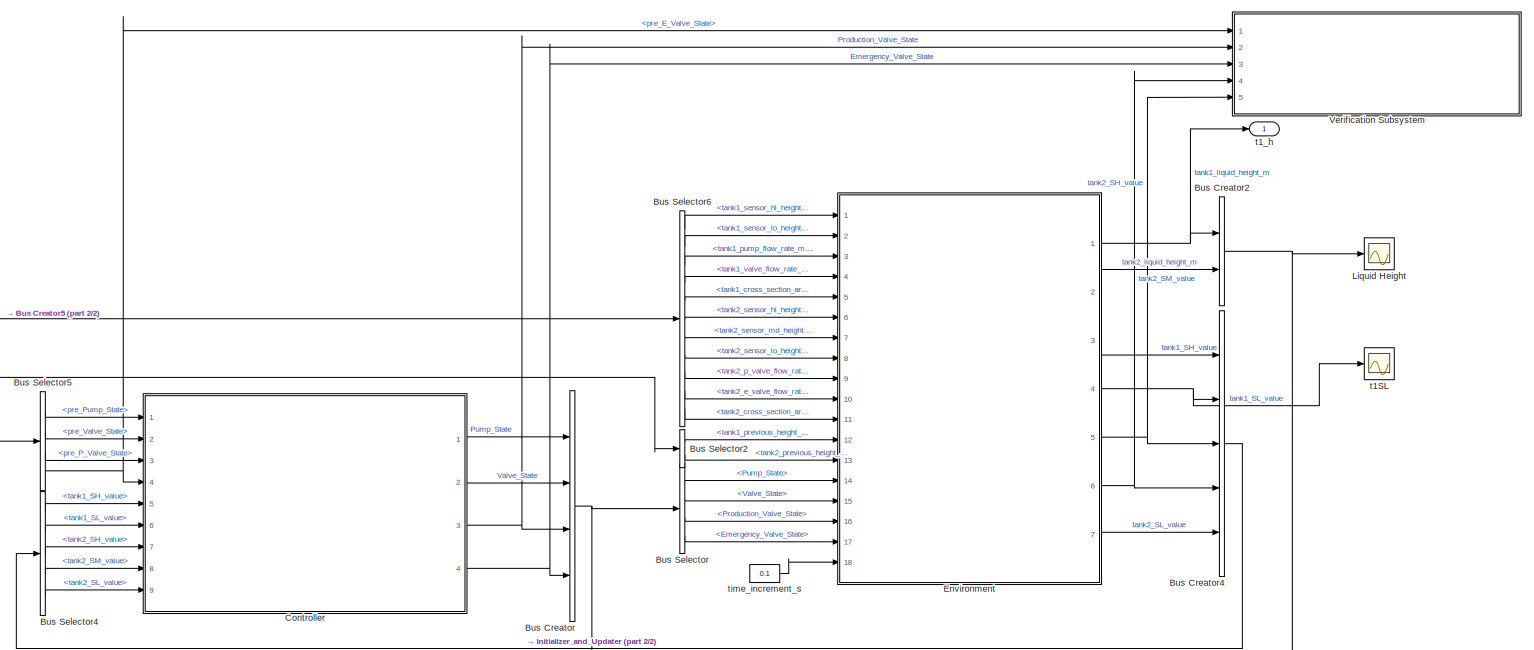
[diagram: root canvas - part 1/2, most of the canvas]
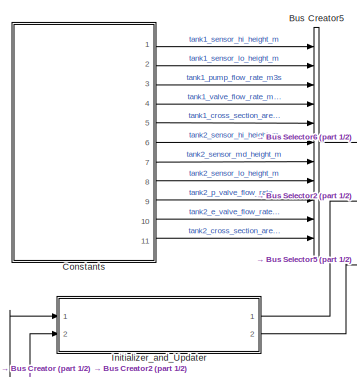
[diagram: root canvas - part 2/2, middle left region]
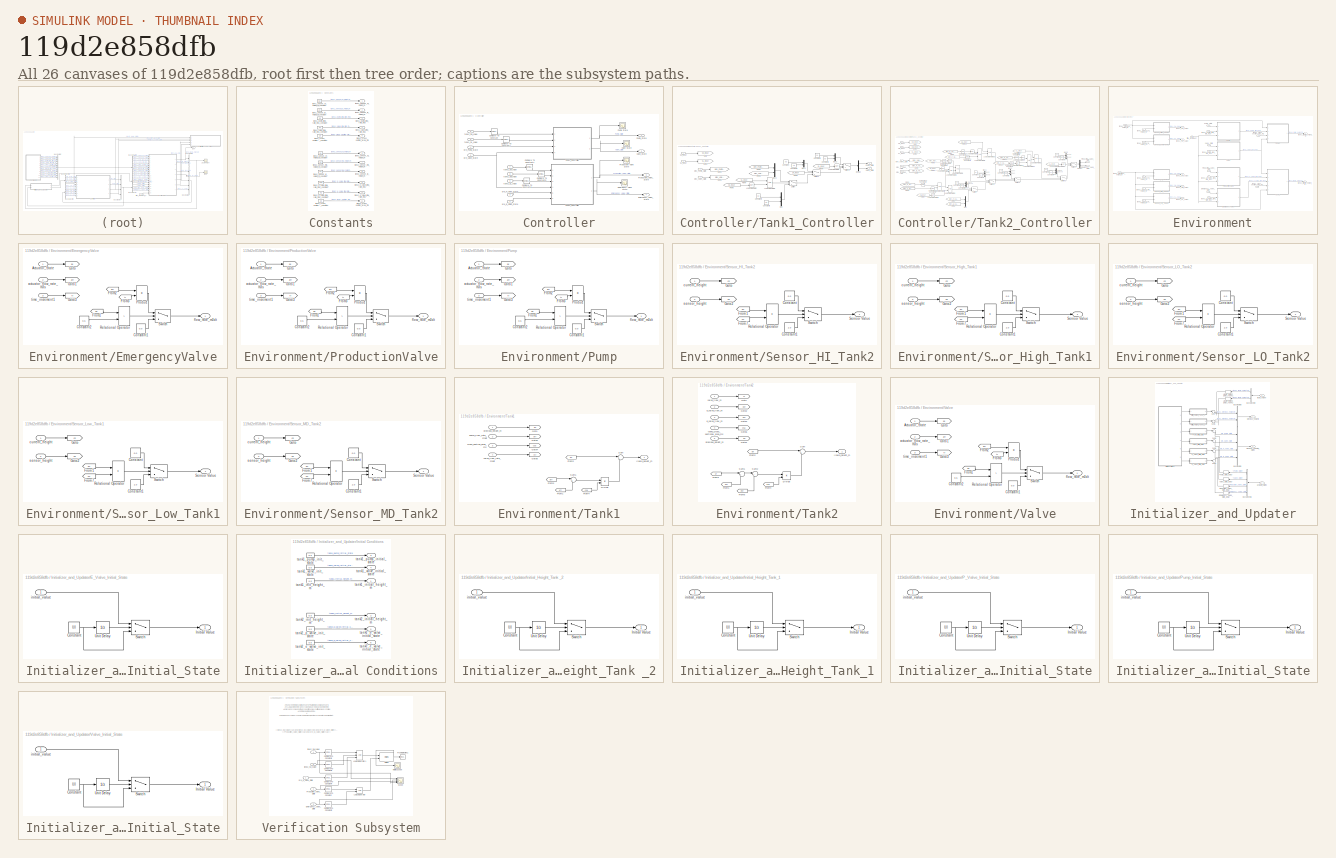
[diagram: thumbnail index - all 26 canvases of the model, root first then tree order]
MODEL slx_119d2e858dfb
KIND model
CONFIG AbsTol = auto
CONFIG FixedStep = 0.1
CONFIG MaxStep = auto
CONFIG MinStep = auto
CONFIG RelTol = 1e-3
CONFIG SampleTimeConstraint = Unconstrained
CONFIG Solver = FixedStepDiscrete
CONFIG SolverMode = Auto
CONFIG SolverName = FixedStepDiscrete
CONFIG StartTime = 0.0
CONFIG StopTime = 500
BLOCK [BusCreator] Bus Creator
  DisplayOption = bar
  InheritFromInputs = on
  Inputs = 4
  Ports = [4, 1]
BLOCK [BusCreator] Bus Creator2
  DisplayOption = bar
  InheritFromInputs = on
  Inputs = 'tank1_liquid_height_m','tank2_liquid_height_m'
  Ports = [2, 1]
BLOCK [BusCreator] Bus Creator4
  DisplayOption = bar
  InheritFromInputs = on
  Inputs = 'tank1_SH_value','tank1_SL_value','tank2_SH_value','tank2_SM_value','tank2_SL_value'
  Ports = [5, 1]
BLOCK [BusCreator] Bus Creator5
  DisplayOption = bar
  InheritFromInputs = on
  Inputs = 'tank1_sensor_hi_height_m','tank1_sensor_lo_height_m','tank1_pump_flow_rate_m3s','tank1_valve_flow_rate_m3s','tank1_cross_section_area_m2','tank2_sensor_hi_height_m','tank2_sensor_md_height_m','tank2_sensor_lo_height_m','tank2_p_valve_flow_rate_m3s','tank2_e_valve_flow_rate_m3s','tank2_cross_section_area_m2'
  Ports = [11, 1]
BLOCK [BusSelector] Bus Selector
  OutputSignals = Pump_State,Valve_State,Production_Valve_State,Emergency_Valve_State
  Ports = [1, 4]
BLOCK [BusSelector] Bus Selector2
  OutputSignals = tank1_previous_height_m,tank2_previous_height_m
  Ports = [1, 2]
BLOCK [BusSelector] Bus Selector4
  OutputSignals = tank1_SH_value,tank1_SL_value,tank2_SH_value,tank2_SM_value,tank2_SL_value
  Ports = [1, 5]
BLOCK [BusSelector] Bus Selector5
  OutputSignals = pre_Pump_State,pre_Valve_State,pre_P_Valve_State,pre_E_Valve_State
  Ports = [1, 4]
BLOCK [BusSelector] Bus Selector6
  OutputSignals = tank1_sensor_hi_height_m,tank1_sensor_lo_height_m,tank1_pump_flow_rate_m3s,tank1_valve_flow_rate_m3s,tank1_cross_section_area_m2,tank2_sensor_hi_height_m,tank2_sensor_md_height_m,tank2_sensor_lo_height_m,tank2_p_valve_flow_rate_m3s,tank2_e_valve_flow_rate_m3s,tank2_cross_section_area_m2
  Ports = [1, 11]
BLOCK [SubSystem] Constants
  Ports = [0, 11]
  RequestExecContextInheritance = off
  Variant = off
BLOCK [Outport] Constants/tank1_cross_section_area_m2
  IconDisplay = Port number
  Port = 5
BLOCK [Constant] Constants/tank1_cross_section_area_m2_constant
  Value = 1.0
BLOCK [Outport] Constants/tank1_pump_flow_rate_m3s
  IconDisplay = Port number
  Port = 3
BLOCK [Constant] Constants/tank1_pump_flow_rate_m3s_constant
  Value = 0.2
BLOCK [Outport] Constants/tank1_sensor_hi_height_m
  IconDisplay = Port number
BLOCK [Constant] Constants/tank1_sensor_hi_height_m_constant
  Value = 5.0
BLOCK [Outport] Constants/tank1_sensor_lo_height_m
  IconDisplay = Port number
  Port = 2
BLOCK [Constant] Constants/tank1_sensor_lo_height_m_constant
  Value = 2.0
BLOCK [Outport] Constants/tank1_valve_flow_rate_m3s
  IconDisplay = Port number
  Port = 4
BLOCK [Constant] Constants/tank1_valve_flow_rate_m3s_constant
  Value = 0.1
BLOCK [Outport] Constants/tank2_cross_section_area_m2
  IconDisplay = Port number
  Port = 11
BLOCK [Constant] Constants/tank2_cross_section_area_m2_constant
  Value = 2.0
BLOCK [Outport] Constants/tank2_e_valve_flow_rate_m3s
  IconDisplay = Port number
  Port = 10
BLOCK [Constant] Constants/tank2_e_valve_flow_rate_m3s_constant
  Value = 0.2
BLOCK [Outport] Constants/tank2_p_valve_flow_rate_m3s
  IconDisplay = Port number
  Port = 9
BLOCK [Constant] Constants/tank2_p_valve_flow_rate_m3s_constant
  Value = 0.05
BLOCK [Outport] Constants/tank2_sensor_hi_height_m
  IconDisplay = Port number
  Port = 6
BLOCK [Constant] Constants/tank2_sensor_hi_height_m_constant
  Value = 3.0
BLOCK [Outport] Constants/tank2_sensor_lo_height_m
  IconDisplay = Port number
  Port = 8
BLOCK [Constant] Constants/tank2_sensor_lo_height_m_constant
  Value = 1.0
BLOCK [Outport] Constants/tank2_sensor_md_height_m
  IconDisplay = Port number
  Port = 7
BLOCK [Constant] Constants/tank2_sensor_md_height_m_constant
  Value = 2.0
BLOCK [SubSystem] Controller
  Ports = [9, 4]
  RequestExecContextInheritance = off
  Variant = off
BLOCK [Reference] Controller/Compare To Constant  REF=simulink/Logic and Bit
Operations/Compare
To Constant
  Ports = [1, 1]
  SourceBlock = simulink/Logic and Bit\nOperations/Compare\nTo Constant
  SourceType = Compare To Constant
BLOCK [Reference] Controller/Compare To Constant1  REF=simulink/Logic and Bit
Operations/Compare
To Constant
  Ports = [1, 1]
  SourceBlock = simulink/Logic and Bit\nOperations/Compare\nTo Constant
  SourceType = Compare To Constant
BLOCK [Reference] Controller/Compare To Constant4  REF=simulink/Logic and Bit
Operations/Compare
To Constant
  Ports = [1, 1]
  SourceBlock = simulink/Logic and Bit\nOperations/Compare\nTo Constant
  SourceType = Compare To Constant
BLOCK [Reference] Controller/Compare To Constant5  REF=simulink/Logic and Bit
Operations/Compare
To Constant
  Ports = [1, 1]
  SourceBlock = simulink/Logic and Bit\nOperations/Compare\nTo Constant
  SourceType = Compare To Constant
BLOCK [Reference] Controller/Compare To Constant6  REF=simulink/Logic and Bit
Operations/Compare
To Constant
  Ports = [1, 1]
  SourceBlock = simulink/Logic and Bit\nOperations/Compare\nTo Constant
  SourceType = Compare To Constant
BLOCK [Scope] Controller/Emergency Valve State
  Ports = [1]
  ScopeSpecificationString = C++SS(StrPVP('Location','[188, 390, 512, 629]'),StrPVP('Open','off'),MxPVP('AxesTitles',24,'struct(''axes1'',''%<SignalLabel>'')'),MxPVP('ScopeGraphics',28,'struct(''FigureColor'',''[0.5 0.5 0.5]'',''AxesColor'',''[0 0 0]'',''AxesTickColor'',''[1 1 1]'',''LineColors'',''[1 1 0;1 0 1;0 1 1;1 0 0;0 1 0;0 0 1]'',''LineStyles'',''-|-|-|-|-|-'',''LineWidths'',''[0.5 0.5 0.5 0.5 0.5 0.5]'',''MarkerStyle...<+271ch>
BLOCK [Outport] Controller/Emergency_Valve_State
  IconDisplay = Port number
  Port = 4
BLOCK [Scope] Controller/Production Valve State
  Ports = [1]
  ScopeSpecificationString = C++SS(StrPVP('Location','[1346, 610, 1670, 849]'),StrPVP('Open','off'),MxPVP('AxesTitles',24,'struct(''axes1'',''%<SignalLabel>'')'),MxPVP('ScopeGraphics',28,'struct(''FigureColor'',''[0.5 0.5 0.5]'',''AxesColor'',''[0 0 0]'',''AxesTickColor'',''[1 1 1]'',''LineColors'',''[1 1 0;1 0 1;0 1 1;1 0 0;0 1 0;0 0 1]'',''LineStyles'',''-|-|-|-|-|-'',''LineWidths'',''[0.5 0.5 0.5 0.5 0.5 0.5]'',''MarkerSty...<+273ch>
BLOCK [Outport] Controller/Production_Valve_State
  IconDisplay = Port number
  Port = 3
BLOCK [Scope] Controller/Pump State 
  Ports = [1]
  ScopeSpecificationString = Simulink.scopes.TimeScopeBlockCfg('CurrentConfiguration', extmgr.ConfigurationSet(extmgr.Configuration('Core','General UI',true),extmgr.Configuration('Core','Source UI',true),extmgr.Configuration('Sources','WiredSimulink',true,'DataLoggingVariableName','ScopeData4','DataLoggingSaveFormat','StructureWithTime','DataLoggingLimitDataPoints',true,'DataLoggingDecimation','1','DataLoggingDecimateData',tr...<+1643ch>
BLOCK [Outport] Controller/Pump_State
  IconDisplay = Port number
BLOCK [SubSystem] Controller/Tank1_Controller
  Ports = [4, 2]
  RequestExecContextInheritance = off
  Variant = off
BLOCK [Constant] Controller/Tank1_Controller/Constant
  Value = 0.0
BLOCK [Constant] Controller/Tank1_Controller/Constant1
  Value = 1.0
BLOCK [Constant] Controller/Tank1_Controller/Constant2
  Value = 1.0
BLOCK [Constant] Controller/Tank1_Controller/Constant3
  Value = 0.0
BLOCK [Constant] Controller/Tank1_Controller/Constant4
  Value = -1.0
BLOCK [Constant] Controller/Tank1_Controller/Constant5
  Value = -1.0
BLOCK [Demux] Controller/Tank1_Controller/Demux
  DisplayOption = bar
  Outputs = 2
  Ports = [1, 2]
BLOCK [From] Controller/Tank1_Controller/From1
  GotoTag = prev_Valve_State
BLOCK [From] Controller/Tank1_Controller/From2
  GotoTag = prev_Pump_State
BLOCK [From] Controller/Tank1_Controller/From3
  GotoTag = SH_Input
BLOCK [From] Controller/Tank1_Controller/From4
  GotoTag = SL_Input
BLOCK [From] Controller/Tank1_Controller/From6
  GotoTag = SH_Input
BLOCK [From] Controller/Tank1_Controller/From7
  GotoTag = SL_Input
BLOCK [Goto] Controller/Tank1_Controller/Goto
  GotoTag = SH_Input
BLOCK [Goto] Controller/Tank1_Controller/Goto2
  GotoTag = SL_Input
BLOCK [Goto] Controller/Tank1_Controller/Goto3
  GotoTag = prev_Pump_State
BLOCK [Goto] Controller/Tank1_Controller/Goto5
  GotoTag = prev_Valve_State
BLOCK [Logic] Controller/Tank1_Controller/Logical Operator
  AllPortsSameDT = off
  Operator = NOT
  OutDataTypeStr = boolean
  Ports = [1, 1]
BLOCK [Logic] Controller/Tank1_Controller/Logical Operator1
  AllPortsSameDT = off
  OutDataTypeStr = boolean
  Ports = [2, 1]
BLOCK [Logic] Controller/Tank1_Controller/Logical Operator2
  AllPortsSameDT = off
  Operator = NOT
  OutDataTypeStr = boolean
  Ports = [1, 1]
BLOCK [Mux] Controller/Tank1_Controller/Mux
  DisplayOption = bar
  Inputs = 2
  Ports = [2, 1]
BLOCK [Mux] Controller/Tank1_Controller/Mux1
  DisplayOption = bar
  Inputs = 2
  Ports = [2, 1]
BLOCK [Mux] Controller/Tank1_Controller/Mux2
  DisplayOption = bar
  Inputs = 2
  Ports = [2, 1]
BLOCK [Mux] Controller/Tank1_Controller/Mux3
  DisplayOption = bar
  Inputs = 2
  Ports = [2, 1]
BLOCK [Outport] Controller/Tank1_Controller/Pump_State
  IconDisplay = Port number
BLOCK [Inport] Controller/Tank1_Controller/SH_Input
  IconDisplay = Port number
BLOCK [Inport] Controller/Tank1_Controller/SL_Input
  IconDisplay = Port number
  Port = 2
BLOCK [Switch] Controller/Tank1_Controller/Switch
  Criteria = u2 ~= 0
  InputSameDT = off
  SaturateOnIntegerOverflow = off
BLOCK [Switch] Controller/Tank1_Controller/Switch2
  Criteria = u2 ~= 0
  InputSameDT = off
  SaturateOnIntegerOverflow = off
BLOCK [Switch] Controller/Tank1_Controller/Switch3
  Criteria = u2 ~= 0
  InputSameDT = off
  SaturateOnIntegerOverflow = off
BLOCK [Outport] Controller/Tank1_Controller/Valve_State
  IconDisplay = Port number
  Port = 2
BLOCK [Inport] Controller/Tank1_Controller/prev_Pump_State
  IconDisplay = Port number
  Port = 3
BLOCK [Inport] Controller/Tank1_Controller/prev_Valve_State
  IconDisplay = Port number
  Port = 4
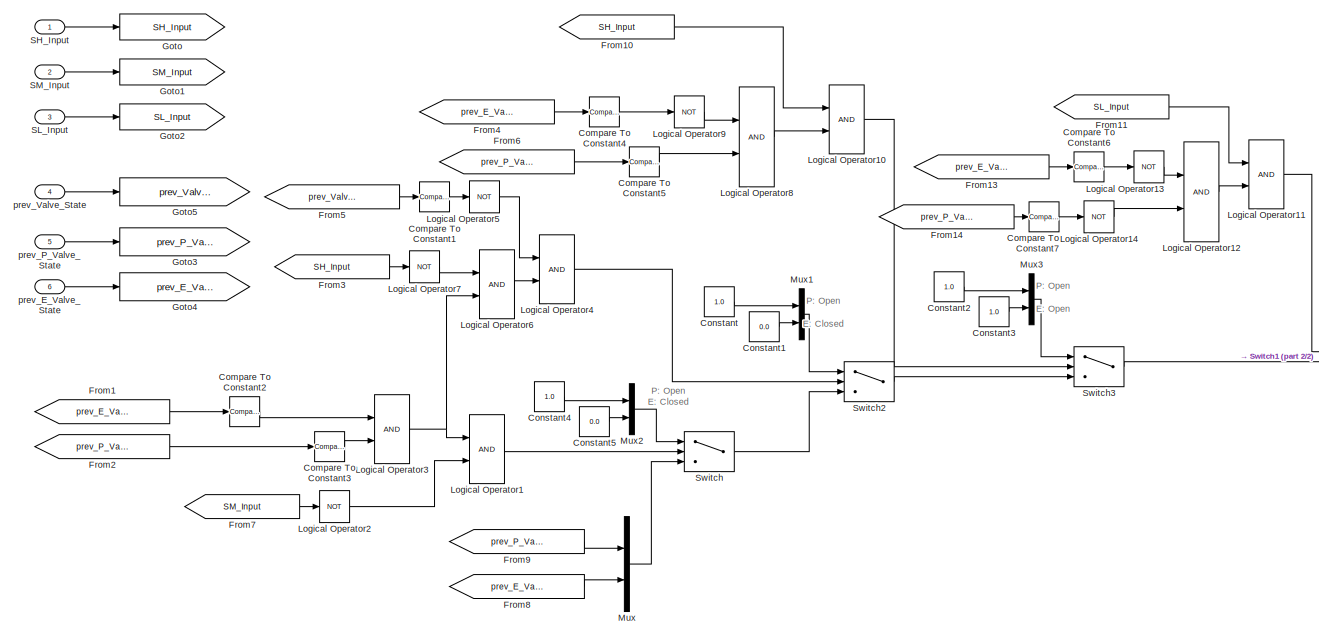
[diagram: Controller/Tank2_Controller - part 1/2, most of the canvas]
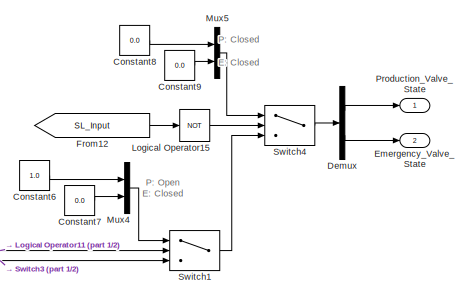
[diagram: Controller/Tank2_Controller - part 2/2, middle right region]
BLOCK [SubSystem] Controller/Tank2_Controller
  Ports = [6, 2]
  RequestExecContextInheritance = off
  Variant = off
BLOCK [Reference] Controller/Tank2_Controller/Compare To Constant1  REF=simulink/Logic and Bit
Operations/Compare
To Constant
  Ports = [1, 1]
  SourceBlock = simulink/Logic and Bit\nOperations/Compare\nTo Constant
  SourceType = Compare To Constant
BLOCK [Reference] Controller/Tank2_Controller/Compare To Constant2  REF=simulink/Logic and Bit
Operations/Compare
To Constant
  Ports = [1, 1]
  SourceBlock = simulink/Logic and Bit\nOperations/Compare\nTo Constant
  SourceType = Compare To Constant
BLOCK [Reference] Controller/Tank2_Controller/Compare To Constant3  REF=simulink/Logic and Bit
Operations/Compare
To Constant
  Ports = [1, 1]
  SourceBlock = simulink/Logic and Bit\nOperations/Compare\nTo Constant
  SourceType = Compare To Constant
BLOCK [Reference] Controller/Tank2_Controller/Compare To Constant4  REF=simulink/Logic and Bit
Operations/Compare
To Constant
  Ports = [1, 1]
  SourceBlock = simulink/Logic and Bit\nOperations/Compare\nTo Constant
  SourceType = Compare To Constant
BLOCK [Reference] Controller/Tank2_Controller/Compare To Constant5  REF=simulink/Logic and Bit
Operations/Compare
To Constant
  Ports = [1, 1]
  SourceBlock = simulink/Logic and Bit\nOperations/Compare\nTo Constant
  SourceType = Compare To Constant
BLOCK [Reference] Controller/Tank2_Controller/Compare To Constant6  REF=simulink/Logic and Bit
Operations/Compare
To Constant
  Ports = [1, 1]
  SourceBlock = simulink/Logic and Bit\nOperations/Compare\nTo Constant
  SourceType = Compare To Constant
BLOCK [Reference] Controller/Tank2_Controller/Compare To Constant7  REF=simulink/Logic and Bit
Operations/Compare
To Constant
  Ports = [1, 1]
  SourceBlock = simulink/Logic and Bit\nOperations/Compare\nTo Constant
  SourceType = Compare To Constant
BLOCK [Constant] Controller/Tank2_Controller/Constant
  Value = 1.0
BLOCK [Constant] Controller/Tank2_Controller/Constant1
  Value = 0.0
BLOCK [Constant] Controller/Tank2_Controller/Constant2
  Value = 1.0
BLOCK [Constant] Controller/Tank2_Controller/Constant3
  Value = 1.0
BLOCK [Constant] Controller/Tank2_Controller/Constant4
  Value = 1.0
BLOCK [Constant] Controller/Tank2_Controller/Constant5
  Value = 0.0
BLOCK [Constant] Controller/Tank2_Controller/Constant6
  Value = 1.0
BLOCK [Constant] Controller/Tank2_Controller/Constant7
  Value = 0.0
BLOCK [Constant] Controller/Tank2_Controller/Constant8
  Value = 0.0
BLOCK [Constant] Controller/Tank2_Controller/Constant9
  Value = 0.0
BLOCK [Demux] Controller/Tank2_Controller/Demux
  DisplayOption = bar
  Outputs = 2
  Ports = [1, 2]
BLOCK [Outport] Controller/Tank2_Controller/Emergency_Valve_State
  IconDisplay = Port number
  Port = 2
BLOCK [From] Controller/Tank2_Controller/From1
  GotoTag = prev_E_Valve_State
BLOCK [From] Controller/Tank2_Controller/From10
  GotoTag = SH_Input
BLOCK [From] Controller/Tank2_Controller/From11
  GotoTag = SL_Input
BLOCK [From] Controller/Tank2_Controller/From12
  GotoTag = SL_Input
BLOCK [From] Controller/Tank2_Controller/From13
  GotoTag = prev_E_Valve_State
BLOCK [From] Controller/Tank2_Controller/From14
  GotoTag = prev_P_Valve_State
BLOCK [From] Controller/Tank2_Controller/From2
  GotoTag = prev_P_Valve_State
BLOCK [From] Controller/Tank2_Controller/From3
  GotoTag = SH_Input
BLOCK [From] Controller/Tank2_Controller/From4
  GotoTag = prev_E_Valve_State
BLOCK [From] Controller/Tank2_Controller/From5
  GotoTag = prev_Valve_State
BLOCK [From] Controller/Tank2_Controller/From6
  GotoTag = prev_P_Valve_State
BLOCK [From] Controller/Tank2_Controller/From7
  GotoTag = SM_Input
BLOCK [From] Controller/Tank2_Controller/From8
  GotoTag = prev_E_Valve_State
BLOCK [From] Controller/Tank2_Controller/From9
  GotoTag = prev_P_Valve_State
BLOCK [Goto] Controller/Tank2_Controller/Goto
  GotoTag = SH_Input
BLOCK [Goto] Controller/Tank2_Controller/Goto1
  GotoTag = SM_Input
BLOCK [Goto] Controller/Tank2_Controller/Goto2
  GotoTag = SL_Input
BLOCK [Goto] Controller/Tank2_Controller/Goto3
  GotoTag = prev_P_Valve_State
BLOCK [Goto] Controller/Tank2_Controller/Goto4
  GotoTag = prev_E_Valve_State
BLOCK [Goto] Controller/Tank2_Controller/Goto5
  GotoTag = prev_Valve_State
BLOCK [Logic] Controller/Tank2_Controller/Logical Operator1
  AllPortsSameDT = off
  OutDataTypeStr = boolean
  Ports = [2, 1]
BLOCK [Logic] Controller/Tank2_Controller/Logical Operator10
  AllPortsSameDT = off
  OutDataTypeStr = boolean
  Ports = [2, 1]
BLOCK [Logic] Controller/Tank2_Controller/Logical Operator11
  AllPortsSameDT = off
  OutDataTypeStr = boolean
  Ports = [2, 1]
BLOCK [Logic] Controller/Tank2_Controller/Logical Operator12
  AllPortsSameDT = off
  OutDataTypeStr = boolean
  Ports = [2, 1]
BLOCK [Logic] Controller/Tank2_Controller/Logical Operator13
  AllPortsSameDT = off
  Operator = NOT
  OutDataTypeStr = boolean
  Ports = [1, 1]
BLOCK [Logic] Controller/Tank2_Controller/Logical Operator14
  AllPortsSameDT = off
  Operator = NOT
  OutDataTypeStr = boolean
  Ports = [1, 1]
BLOCK [Logic] Controller/Tank2_Controller/Logical Operator15
  AllPortsSameDT = off
  Operator = NOT
  OutDataTypeStr = boolean
  Ports = [1, 1]
BLOCK [Logic] Controller/Tank2_Controller/Logical Operator2
  AllPortsSameDT = off
  Operator = NOT
  OutDataTypeStr = boolean
  Ports = [1, 1]
BLOCK [Logic] Controller/Tank2_Controller/Logical Operator3
  AllPortsSameDT = off
  OutDataTypeStr = boolean
  Ports = [2, 1]
BLOCK [Logic] Controller/Tank2_Controller/Logical Operator4
  AllPortsSameDT = off
  OutDataTypeStr = boolean
  Ports = [2, 1]
BLOCK [Logic] Controller/Tank2_Controller/Logical Operator5
  AllPortsSameDT = off
  Operator = NOT
  OutDataTypeStr = boolean
  Ports = [1, 1]
BLOCK [Logic] Controller/Tank2_Controller/Logical Operator6
  AllPortsSameDT = off
  OutDataTypeStr = boolean
  Ports = [2, 1]
BLOCK [Logic] Controller/Tank2_Controller/Logical Operator7
  AllPortsSameDT = off
  Operator = NOT
  OutDataTypeStr = boolean
  Ports = [1, 1]
BLOCK [Logic] Controller/Tank2_Controller/Logical Operator8
  AllPortsSameDT = off
  OutDataTypeStr = boolean
  Ports = [2, 1]
BLOCK [Logic] Controller/Tank2_Controller/Logical Operator9
  AllPortsSameDT = off
  Operator = NOT
  OutDataTypeStr = boolean
  Ports = [1, 1]
BLOCK [Mux] Controller/Tank2_Controller/Mux
  DisplayOption = bar
  Inputs = 2
  Ports = [2, 1]
BLOCK [Mux] Controller/Tank2_Controller/Mux1
  DisplayOption = bar
  Inputs = 2
  Ports = [2, 1]
BLOCK [Mux] Controller/Tank2_Controller/Mux2
  DisplayOption = bar
  Inputs = 2
  Ports = [2, 1]
BLOCK [Mux] Controller/Tank2_Controller/Mux3
  DisplayOption = bar
  Inputs = 2
  Ports = [2, 1]
BLOCK [Mux] Controller/Tank2_Controller/Mux4
  DisplayOption = bar
  Inputs = 2
  Ports = [2, 1]
BLOCK [Mux] Controller/Tank2_Controller/Mux5
  DisplayOption = bar
  Inputs = 2
  Ports = [2, 1]
BLOCK [Outport] Controller/Tank2_Controller/Production_Valve_State
  IconDisplay = Port number
BLOCK [Inport] Controller/Tank2_Controller/SH_Input
  IconDisplay = Port number
BLOCK [Inport] Controller/Tank2_Controller/SL_Input
  IconDisplay = Port number
  Port = 3
BLOCK [Inport] Controller/Tank2_Controller/SM_Input
  IconDisplay = Port number
  Port = 2
BLOCK [Switch] Controller/Tank2_Controller/Switch
  Criteria = u2 ~= 0
  InputSameDT = off
  SaturateOnIntegerOverflow = off
BLOCK [Switch] Controller/Tank2_Controller/Switch1
  Criteria = u2 ~= 0
  InputSameDT = off
  SaturateOnIntegerOverflow = off
BLOCK [Switch] Controller/Tank2_Controller/Switch2
  Criteria = u2 ~= 0
  InputSameDT = off
  SaturateOnIntegerOverflow = off
BLOCK [Switch] Controller/Tank2_Controller/Switch3
  Criteria = u2 ~= 0
  InputSameDT = off
  SaturateOnIntegerOverflow = off
BLOCK [Switch] Controller/Tank2_Controller/Switch4
  Criteria = u2 ~= 0
  InputSameDT = off
  SaturateOnIntegerOverflow = off
BLOCK [Inport] Controller/Tank2_Controller/prev_E_Valve_State
  IconDisplay = Port number
  Port = 6
BLOCK [Inport] Controller/Tank2_Controller/prev_P_Valve_State
  IconDisplay = Port number
  Port = 5
BLOCK [Inport] Controller/Tank2_Controller/prev_Valve_State
  IconDisplay = Port number
  Port = 4
BLOCK [Scope] Controller/Valve State
  Ports = [1]
  ScopeSpecificationString = Simulink.scopes.TimeScopeBlockCfg('CurrentConfiguration', extmgr.ConfigurationSet(extmgr.Configuration('Core','General UI',true),extmgr.Configuration('Core','Source UI',true),extmgr.Configuration('Sources','WiredSimulink',true,'DataLoggingVariableName','ScopeData1','DataLoggingSaveFormat','StructureWithTime','DataLoggingLimitDataPoints',true,'DataLoggingDecimation','1','DataLoggingDecimateData',tr...<+1642ch>
BLOCK [Outport] Controller/Valve_State
  IconDisplay = Port number
  Port = 2
BLOCK [Inport] Controller/pre_E_Valve_State
  IconDisplay = Port number
  Port = 4
BLOCK [Inport] Controller/pre_P_Valve_State
  IconDisplay = Port number
  Port = 3
BLOCK [Inport] Controller/pre_Pump_State
  IconDisplay = Port number
BLOCK [Inport] Controller/pre_Valve_State
  IconDisplay = Port number
  Port = 2
BLOCK [Inport] Controller/tank1_SH_value
  IconDisplay = Port number
  Port = 5
BLOCK [Inport] Controller/tank1_SL_value
  IconDisplay = Port number
  Port = 6
BLOCK [Inport] Controller/tank2_SH_value
  IconDisplay = Port number
  Port = 7
BLOCK [Inport] Controller/tank2_SL_value
  IconDisplay = Port number
  Port = 9
BLOCK [Inport] Controller/tank2_SM_value
  IconDisplay = Port number
  Port = 8
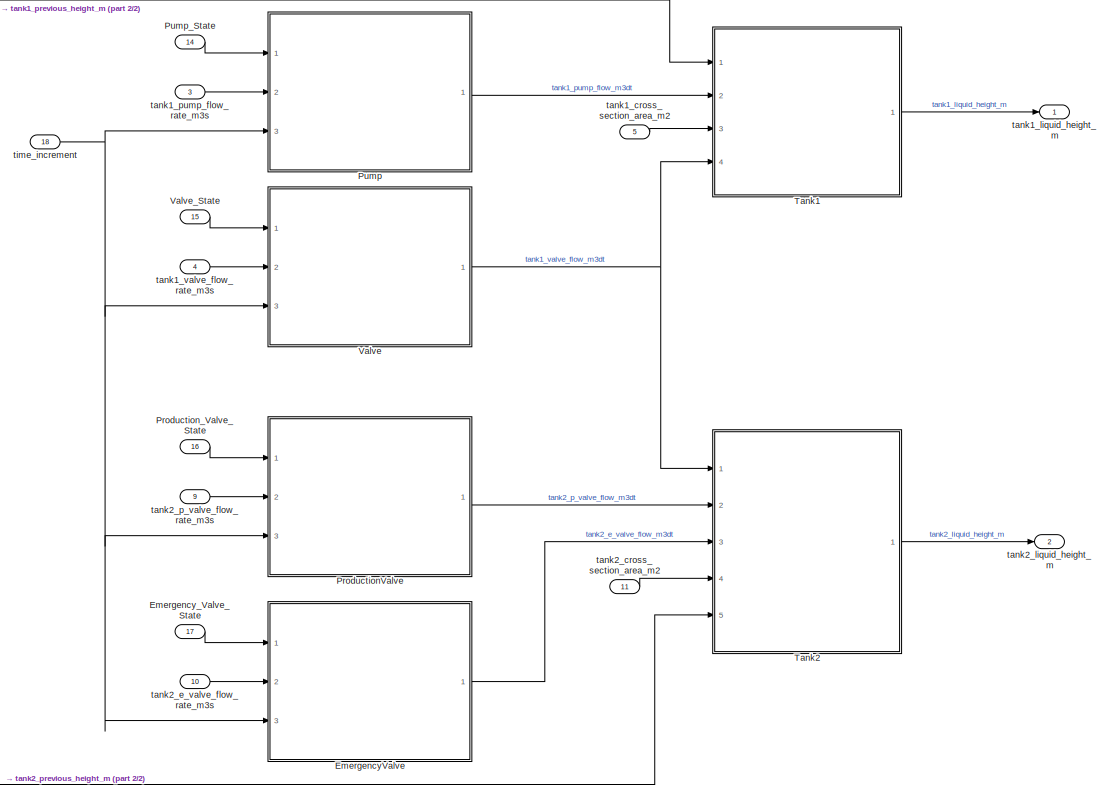
[diagram: Environment - part 1/2, right side, full height]
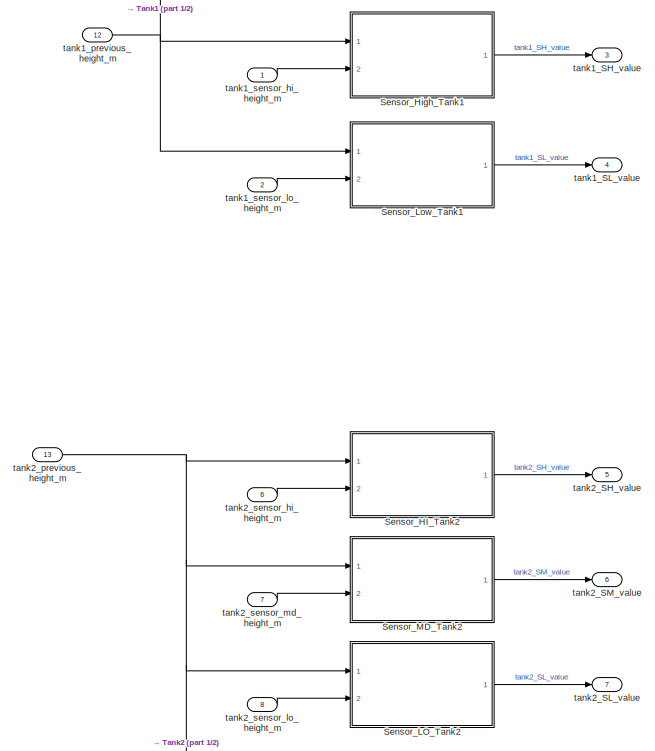
[diagram: Environment - part 2/2, left side, full height]
BLOCK [SubSystem] Environment
  Ports = [18, 7]
  RequestExecContextInheritance = off
  Variant = off
BLOCK [SubSystem] Environment/EmergencyValve
  Ports = [3, 1]
  RequestExecContextInheritance = off
  Variant = off
BLOCK [Inport] Environment/EmergencyValve/Actuator_State
  IconDisplay = Port number
BLOCK [Constant] Environment/EmergencyValve/Constant1
  Value = 0.0
BLOCK [Constant] Environment/EmergencyValve/Constant2
  Value = 0.5
BLOCK [From] Environment/EmergencyValve/From1
  GotoTag = as
BLOCK [From] Environment/EmergencyValve/From2
  GotoTag = afr
BLOCK [From] Environment/EmergencyValve/From3
  GotoTag = ti
BLOCK [Goto] Environment/EmergencyValve/Goto
  GotoTag = as
BLOCK [Goto] Environment/EmergencyValve/Goto1
  GotoTag = afr
BLOCK [Goto] Environment/EmergencyValve/Goto3
  GotoTag = ti
BLOCK [Product] Environment/EmergencyValve/Product
  InputSameDT = off
  OutDataTypeStr = Inherit: Inherit via internal rule
  Ports = [2, 1]
  RndMeth = Floor
  SaturateOnIntegerOverflow = off
BLOCK [RelationalOperator] Environment/EmergencyValve/Relational Operator
  InputSameDT = off
  Operator = >
  OutDataTypeStr = boolean
  Ports = [2, 1]
BLOCK [Switch] Environment/EmergencyValve/Switch
  Criteria = u2 ~= 0
  InputSameDT = off
  SaturateOnIntegerOverflow = off
BLOCK [Inport] Environment/EmergencyValve/actuator_flow_rate_m3s
  IconDisplay = Port number
  Port = 2
BLOCK [Outport] Environment/EmergencyValve/flow_rate_m3dt
  IconDisplay = Port number
BLOCK [Inport] Environment/EmergencyValve/time_increment1
  IconDisplay = Port number
  Port = 3
BLOCK [Inport] Environment/Emergency_Valve_State
  IconDisplay = Port number
  Port = 17
BLOCK [SubSystem] Environment/ProductionValve
  Ports = [3, 1]
  RequestExecContextInheritance = off
  Variant = off
BLOCK [Inport] Environment/ProductionValve/Actuator_State
  IconDisplay = Port number
BLOCK [Constant] Environment/ProductionValve/Constant1
  Value = 0.0
BLOCK [Constant] Environment/ProductionValve/Constant2
  Value = 0.5
BLOCK [From] Environment/ProductionValve/From1
  GotoTag = as
BLOCK [From] Environment/ProductionValve/From2
  GotoTag = afr
BLOCK [From] Environment/ProductionValve/From3
  GotoTag = ti
BLOCK [Goto] Environment/ProductionValve/Goto
  GotoTag = as
BLOCK [Goto] Environment/ProductionValve/Goto1
  GotoTag = afr
BLOCK [Goto] Environment/ProductionValve/Goto3
  GotoTag = ti
BLOCK [Product] Environment/ProductionValve/Product
  InputSameDT = off
  OutDataTypeStr = Inherit: Inherit via internal rule
  Ports = [2, 1]
  RndMeth = Floor
  SaturateOnIntegerOverflow = off
BLOCK [RelationalOperator] Environment/ProductionValve/Relational Operator
  InputSameDT = off
  Operator = >
  OutDataTypeStr = boolean
  Ports = [2, 1]
BLOCK [Switch] Environment/ProductionValve/Switch
  Criteria = u2 ~= 0
  InputSameDT = off
  SaturateOnIntegerOverflow = off
BLOCK [Inport] Environment/ProductionValve/actuator_flow_rate_m3s
  IconDisplay = Port number
  Port = 2
BLOCK [Outport] Environment/ProductionValve/flow_rate_m3dt
  IconDisplay = Port number
BLOCK [Inport] Environment/ProductionValve/time_increment1
  IconDisplay = Port number
  Port = 3
BLOCK [Inport] Environment/Production_Valve_State
  IconDisplay = Port number
  Port = 16
BLOCK [SubSystem] Environment/Pump
  Ports = [3, 1]
  RequestExecContextInheritance = off
  Variant = off
BLOCK [Inport] Environment/Pump/Actuator_State
  IconDisplay = Port number
BLOCK [Constant] Environment/Pump/Constant1
  Value = 0.0
BLOCK [Constant] Environment/Pump/Constant2
  Value = 0.5
BLOCK [From] Environment/Pump/From1
  GotoTag = as
BLOCK [From] Environment/Pump/From2
  GotoTag = afr
BLOCK [From] Environment/Pump/From3
  GotoTag = ti
BLOCK [Goto] Environment/Pump/Goto
  GotoTag = as
BLOCK [Goto] Environment/Pump/Goto1
  GotoTag = afr
BLOCK [Goto] Environment/Pump/Goto3
  GotoTag = ti
BLOCK [Product] Environment/Pump/Product
  InputSameDT = off
  OutDataTypeStr = Inherit: Inherit via internal rule
  Ports = [2, 1]
  RndMeth = Floor
  SaturateOnIntegerOverflow = off
BLOCK [RelationalOperator] Environment/Pump/Relational Operator
  InputSameDT = off
  Operator = >
  OutDataTypeStr = boolean
  Ports = [2, 1]
BLOCK [Switch] Environment/Pump/Switch
  Criteria = u2 ~= 0
  InputSameDT = off
  SaturateOnIntegerOverflow = off
BLOCK [Inport] Environment/Pump/actuator_flow_rate_m3s
  IconDisplay = Port number
  Port = 2
BLOCK [Outport] Environment/Pump/flow_rate_m3dt
  IconDisplay = Port number
BLOCK [Inport] Environment/Pump/time_increment1
  IconDisplay = Port number
  Port = 3
BLOCK [Inport] Environment/Pump_State
  IconDisplay = Port number
  Port = 14
BLOCK [SubSystem] Environment/Sensor_HI_Tank2
  Ports = [2, 1]
  RequestExecContextInheritance = off
  Variant = off
BLOCK [Constant] Environment/Sensor_HI_Tank2/Constant
  Value = 0.0
BLOCK [Constant] Environment/Sensor_HI_Tank2/Constant1
  Value = 1.0
BLOCK [From] Environment/Sensor_HI_Tank2/From1
  GotoTag = sh
BLOCK [From] Environment/Sensor_HI_Tank2/From7
  GotoTag = ch
BLOCK [Goto] Environment/Sensor_HI_Tank2/Goto
  GotoTag = ch
BLOCK [Goto] Environment/Sensor_HI_Tank2/Goto2
  GotoTag = sh
BLOCK [RelationalOperator] Environment/Sensor_HI_Tank2/Relational Operator
  InputSameDT = off
  Operator = >
  OutDataTypeStr = boolean
  Ports = [2, 1]
BLOCK [Outport] Environment/Sensor_HI_Tank2/Sensor Value
  IconDisplay = Port number
BLOCK [Switch] Environment/Sensor_HI_Tank2/Switch
  Criteria = u2 ~= 0
  InputSameDT = off
  SaturateOnIntegerOverflow = off
BLOCK [Inport] Environment/Sensor_HI_Tank2/current_height
  IconDisplay = Port number
BLOCK [Inport] Environment/Sensor_HI_Tank2/sensor_height
  IconDisplay = Port number
  Port = 2
BLOCK [SubSystem] Environment/Sensor_High_Tank1
  Ports = [2, 1]
  RequestExecContextInheritance = off
  Variant = off
BLOCK [Constant] Environment/Sensor_High_Tank1/Constant
  Value = 0.0
BLOCK [Constant] Environment/Sensor_High_Tank1/Constant1
  Value = 1.0
BLOCK [From] Environment/Sensor_High_Tank1/From1
  GotoTag = sh
BLOCK [From] Environment/Sensor_High_Tank1/From7
  GotoTag = ch
BLOCK [Goto] Environment/Sensor_High_Tank1/Goto
  GotoTag = ch
BLOCK [Goto] Environment/Sensor_High_Tank1/Goto2
  GotoTag = sh
BLOCK [RelationalOperator] Environment/Sensor_High_Tank1/Relational Operator
  InputSameDT = off
  Operator = >
  OutDataTypeStr = boolean
  Ports = [2, 1]
BLOCK [Outport] Environment/Sensor_High_Tank1/Sensor Value
  IconDisplay = Port number
BLOCK [Switch] Environment/Sensor_High_Tank1/Switch
  Criteria = u2 ~= 0
  InputSameDT = off
  SaturateOnIntegerOverflow = off
BLOCK [Inport] Environment/Sensor_High_Tank1/current_height
  IconDisplay = Port number
BLOCK [Inport] Environment/Sensor_High_Tank1/sensor_height
  IconDisplay = Port number
  Port = 2
BLOCK [SubSystem] Environment/Sensor_LO_Tank2
  Ports = [2, 1]
  RequestExecContextInheritance = off
  Variant = off
BLOCK [Constant] Environment/Sensor_LO_Tank2/Constant
  Value = 0.0
BLOCK [Constant] Environment/Sensor_LO_Tank2/Constant1
  Value = 1.0
BLOCK [From] Environment/Sensor_LO_Tank2/From1
  GotoTag = sh
BLOCK [From] Environment/Sensor_LO_Tank2/From7
  GotoTag = ch
BLOCK [Goto] Environment/Sensor_LO_Tank2/Goto
  GotoTag = ch
BLOCK [Goto] Environment/Sensor_LO_Tank2/Goto2
  GotoTag = sh
BLOCK [RelationalOperator] Environment/Sensor_LO_Tank2/Relational Operator
  InputSameDT = off
  Operator = >
  OutDataTypeStr = boolean
  Ports = [2, 1]
BLOCK [Outport] Environment/Sensor_LO_Tank2/Sensor Value
  IconDisplay = Port number
BLOCK [Switch] Environment/Sensor_LO_Tank2/Switch
  Criteria = u2 ~= 0
  InputSameDT = off
  SaturateOnIntegerOverflow = off
BLOCK [Inport] Environment/Sensor_LO_Tank2/current_height
  IconDisplay = Port number
BLOCK [Inport] Environment/Sensor_LO_Tank2/sensor_height
  IconDisplay = Port number
  Port = 2
BLOCK [SubSystem] Environment/Sensor_Low_Tank1
  Ports = [2, 1]
  RequestExecContextInheritance = off
  Variant = off
BLOCK [Constant] Environment/Sensor_Low_Tank1/Constant
  Value = 0.0
BLOCK [Constant] Environment/Sensor_Low_Tank1/Constant1
  Value = 1.0
BLOCK [From] Environment/Sensor_Low_Tank1/From1
  GotoTag = sh
BLOCK [From] Environment/Sensor_Low_Tank1/From7
  GotoTag = ch
BLOCK [Goto] Environment/Sensor_Low_Tank1/Goto
  GotoTag = ch
BLOCK [Goto] Environment/Sensor_Low_Tank1/Goto2
  GotoTag = sh
BLOCK [RelationalOperator] Environment/Sensor_Low_Tank1/Relational Operator
  InputSameDT = off
  Operator = >
  OutDataTypeStr = boolean
  Ports = [2, 1]
BLOCK [Outport] Environment/Sensor_Low_Tank1/Sensor Value
  IconDisplay = Port number
BLOCK [Switch] Environment/Sensor_Low_Tank1/Switch
  Criteria = u2 ~= 0
  InputSameDT = off
  SaturateOnIntegerOverflow = off
BLOCK [Inport] Environment/Sensor_Low_Tank1/current_height
  IconDisplay = Port number
BLOCK [Inport] Environment/Sensor_Low_Tank1/sensor_height
  IconDisplay = Port number
  Port = 2
BLOCK [SubSystem] Environment/Sensor_MD_Tank2
  Ports = [2, 1]
  RequestExecContextInheritance = off
  Variant = off
BLOCK [Constant] Environment/Sensor_MD_Tank2/Constant
  Value = 0.0
BLOCK [Constant] Environment/Sensor_MD_Tank2/Constant1
  Value = 1.0
BLOCK [From] Environment/Sensor_MD_Tank2/From1
  GotoTag = sh
BLOCK [From] Environment/Sensor_MD_Tank2/From7
  GotoTag = ch
BLOCK [Goto] Environment/Sensor_MD_Tank2/Goto
  GotoTag = ch
BLOCK [Goto] Environment/Sensor_MD_Tank2/Goto2
  GotoTag = sh
BLOCK [RelationalOperator] Environment/Sensor_MD_Tank2/Relational Operator
  InputSameDT = off
  Operator = >
  OutDataTypeStr = boolean
  Ports = [2, 1]
BLOCK [Outport] Environment/Sensor_MD_Tank2/Sensor Value
  IconDisplay = Port number
BLOCK [Switch] Environment/Sensor_MD_Tank2/Switch
  Criteria = u2 ~= 0
  InputSameDT = off
  SaturateOnIntegerOverflow = off
BLOCK [Inport] Environment/Sensor_MD_Tank2/current_height
  IconDisplay = Port number
BLOCK [Inport] Environment/Sensor_MD_Tank2/sensor_height
  IconDisplay = Port number
  Port = 2
BLOCK [SubSystem] Environment/Tank1
  Ports = [4, 1]
  RequestExecContextInheritance = off
  Variant = off
BLOCK [Product] Environment/Tank1/Divide
  InputSameDT = off
  Inputs = */
  OutDataTypeStr = Inherit: Inherit via internal rule
  Ports = [2, 1]
  RndMeth = Floor
  SaturateOnIntegerOverflow = off
BLOCK [From] Environment/Tank1/From1
  GotoTag = vfr
BLOCK [From] Environment/Tank1/From2
  GotoTag = ph
BLOCK [From] Environment/Tank1/From3
  GotoTag = pfr
BLOCK [From] Environment/Tank1/From4
  GotoTag = csa
BLOCK [Goto] Environment/Tank1/Goto
  GotoTag = ph
BLOCK [Goto] Environment/Tank1/Goto2
  GotoTag = pfr
BLOCK [Goto] Environment/Tank1/Goto4
  GotoTag = csa
BLOCK [Goto] Environment/Tank1/Goto5
  GotoTag = vfr
BLOCK [Sum] Environment/Tank1/Sum
  IconShape = round
  InputSameDT = off
  Inputs = |++
  OutDataTypeStr = Inherit: Inherit via internal rule
  Ports = [2, 1]
  SaturateOnIntegerOverflow = off
BLOCK [Sum] Environment/Tank1/Sum1
  IconShape = round
  InputSameDT = off
  Inputs = |+-
  OutDataTypeStr = Inherit: Inherit via internal rule
  Ports = [2, 1]
  SaturateOnIntegerOverflow = off
BLOCK [Inport] Environment/Tank1/cross_section_area_m2
  IconDisplay = Port number
  Port = 3
BLOCK [Outport] Environment/Tank1/liquid_height_m
  IconDisplay = Port number
BLOCK [Inport] Environment/Tank1/previous_height_m
  IconDisplay = Port number
BLOCK [Inport] Environment/Tank1/pump_flow_rate_m3dt
  IconDisplay = Port number
  Port = 2
BLOCK [Inport] Environment/Tank1/valve_flow_rate_m3dt
  IconDisplay = Port number
  Port = 4
BLOCK [SubSystem] Environment/Tank2
  Ports = [5, 1]
  RequestExecContextInheritance = off
  Variant = off
BLOCK [Product] Environment/Tank2/Divide
  InputSameDT = off
  Inputs = */
  OutDataTypeStr = Inherit: Inherit via internal rule
  Ports = [2, 1]
  RndMeth = Floor
  SaturateOnIntegerOverflow = off
BLOCK [From] Environment/Tank2/From1
  GotoTag = pvf
BLOCK [From] Environment/Tank2/From2
  GotoTag = ph
BLOCK [From] Environment/Tank2/From3
  GotoTag = vf
BLOCK [From] Environment/Tank2/From4
  GotoTag = csa
BLOCK [From] Environment/Tank2/From5
  GotoTag = evf
BLOCK [Goto] Environment/Tank2/Goto
  GotoTag = vf
BLOCK [Goto] Environment/Tank2/Goto1
  GotoTag = ph
BLOCK [Goto] Environment/Tank2/Goto2
  GotoTag = pvf
BLOCK [Goto] Environment/Tank2/Goto4
  GotoTag = evf
BLOCK [Goto] Environment/Tank2/Goto5
  GotoTag = csa
BLOCK [Sum] Environment/Tank2/Sum
  IconShape = round
  InputSameDT = off
  Inputs = |++
  OutDataTypeStr = Inherit: Inherit via internal rule
  Ports = [2, 1]
  SaturateOnIntegerOverflow = off
BLOCK [Sum] Environment/Tank2/Sum1
  IconShape = round
  InputSameDT = off
  Inputs = |+-
  OutDataTypeStr = Inherit: Inherit via internal rule
  Ports = [2, 1]
  SaturateOnIntegerOverflow = off
BLOCK [Sum] Environment/Tank2/Sum2
  IconShape = round
  InputSameDT = off
  Inputs = |+-
  OutDataTypeStr = Inherit: Inherit via internal rule
  Ports = [2, 1]
  SaturateOnIntegerOverflow = off
BLOCK [Inport] Environment/Tank2/e_valve_flow_m
  IconDisplay = Port number
  Port = 3
BLOCK [Outport] Environment/Tank2/liquid_height_m
  IconDisplay = Port number
BLOCK [Inport] Environment/Tank2/p_valve_flow_m
  IconDisplay = Port number
  Port = 2
BLOCK [Inport] Environment/Tank2/previous_height_m
  IconDisplay = Port number
  Port = 5
BLOCK [Inport] Environment/Tank2/tank2_cross_sectional_area_m2
  IconDisplay = Port number
  Port = 4
BLOCK [Inport] Environment/Tank2/valve_flow_m
  IconDisplay = Port number
BLOCK [SubSystem] Environment/Valve
  Ports = [3, 1]
  RequestExecContextInheritance = off
  Variant = off
BLOCK [Inport] Environment/Valve/Actuator_State
  IconDisplay = Port number
BLOCK [Constant] Environment/Valve/Constant1
  Value = 0.0
BLOCK [Constant] Environment/Valve/Constant2
  Value = 0.5
BLOCK [From] Environment/Valve/From1
  GotoTag = as
BLOCK [From] Environment/Valve/From2
  GotoTag = afr
BLOCK [From] Environment/Valve/From3
  GotoTag = ti
BLOCK [Goto] Environment/Valve/Goto
  GotoTag = as
BLOCK [Goto] Environment/Valve/Goto1
  GotoTag = afr
BLOCK [Goto] Environment/Valve/Goto3
  GotoTag = ti
BLOCK [Product] Environment/Valve/Product
  InputSameDT = off
  OutDataTypeStr = Inherit: Inherit via internal rule
  Ports = [2, 1]
  RndMeth = Floor
  SaturateOnIntegerOverflow = off
BLOCK [RelationalOperator] Environment/Valve/Relational Operator
  InputSameDT = off
  Operator = >
  OutDataTypeStr = boolean
  Ports = [2, 1]
BLOCK [Switch] Environment/Valve/Switch
  Criteria = u2 ~= 0
  InputSameDT = off
  SaturateOnIntegerOverflow = off
BLOCK [Inport] Environment/Valve/actuator_flow_rate_m3s
  IconDisplay = Port number
  Port = 2
BLOCK [Outport] Environment/Valve/flow_rate_m3dt
  IconDisplay = Port number
BLOCK [Inport] Environment/Valve/time_increment1
  IconDisplay = Port number
  Port = 3
BLOCK [Inport] Environment/Valve_State
  IconDisplay = Port number
  Port = 15
BLOCK [Outport] Environment/tank1_SH_value
  IconDisplay = Port number
  Port = 3
BLOCK [Outport] Environment/tank1_SL_value
  IconDisplay = Port number
  Port = 4
BLOCK [Inport] Environment/tank1_cross_section_area_m2
  IconDisplay = Port number
  Port = 5
BLOCK [Outport] Environment/tank1_liquid_height_m
  IconDisplay = Port number
BLOCK [Inport] Environment/tank1_previous_height_m
  IconDisplay = Port number
  Port = 12
BLOCK [Inport] Environment/tank1_pump_flow_rate_m3s
  IconDisplay = Port number
  Port = 3
BLOCK [Inport] Environment/tank1_sensor_hi_height_m
  IconDisplay = Port number
BLOCK [Inport] Environment/tank1_sensor_lo_height_m
  IconDisplay = Port number
  Port = 2
BLOCK [Inport] Environment/tank1_valve_flow_rate_m3s
  IconDisplay = Port number
  Port = 4
BLOCK [Outport] Environment/tank2_SH_value
  IconDisplay = Port number
  Port = 5
BLOCK [Outport] Environment/tank2_SL_value
  IconDisplay = Port number
  Port = 7
BLOCK [Outport] Environment/tank2_SM_value
  IconDisplay = Port number
  Port = 6
BLOCK [Inport] Environment/tank2_cross_section_area_m2
  IconDisplay = Port number
  Port = 11
BLOCK [Inport] Environment/tank2_e_valve_flow_rate_m3s
  IconDisplay = Port number
  Port = 10
BLOCK [Outport] Environment/tank2_liquid_height_m
  IconDisplay = Port number
  Port = 2
BLOCK [Inport] Environment/tank2_p_valve_flow_rate_m3s
  IconDisplay = Port number
  Port = 9
BLOCK [Inport] Environment/tank2_previous_height_m
  IconDisplay = Port number
  Port = 13
BLOCK [Inport] Environment/tank2_sensor_hi_height_m
  IconDisplay = Port number
  Port = 6
BLOCK [Inport] Environment/tank2_sensor_lo_height_m
  IconDisplay = Port number
  Port = 8
BLOCK [Inport] Environment/tank2_sensor_md_height_m
  IconDisplay = Port number
  Port = 7
BLOCK [Inport] Environment/time_increment
  IconDisplay = Port number
  Port = 18
BLOCK [SubSystem] Initializer_and_Updater
  Ports = [2, 2]
  RequestExecContextInheritance = off
  Variant = off
BLOCK [BusCreator] Initializer_and_Updater/Bus Creator1
  DisplayOption = bar
  InheritFromInputs = on
  Inputs = 'pre_Pump_State','pre_Valve_State','pre_P_Valve_State','pre_E_Valve_State'
  Ports = [4, 1]
BLOCK [BusCreator] Initializer_and_Updater/Bus Creator3
  DisplayOption = bar
  InheritFromInputs = on
  Inputs = 'tank1_previous_height_m','tank2_previous_height_m'
  Ports = [2, 1]
BLOCK [BusSelector] Initializer_and_Updater/Bus Selector1
  OutputSignals = Pump_State,Valve_State,Production_Valve_State,Emergency_Valve_State
  Ports = [1, 4]
BLOCK [BusSelector] Initializer_and_Updater/Bus Selector3
  OutputSignals = tank1_liquid_height_m,tank2_liquid_height_m
  Ports = [1, 2]
BLOCK [SubSystem] Initializer_and_Updater/E_Valve_Initial_State
  Ports = [1, 1]
  RequestExecContextInheritance = off
  Variant = off
BLOCK [Constant] Initializer_and_Updater/E_Valve_Initial_State/Constant
  Value = 0.0
BLOCK [Outport] Initializer_and_Updater/E_Valve_Initial_State/Initial Value
  IconDisplay = Port number
BLOCK [Switch] Initializer_and_Updater/E_Valve_Initial_State/Switch
  Criteria = u2 > Threshold
  InputSameDT = off
  SaturateOnIntegerOverflow = off
BLOCK [UnitDelay] Initializer_and_Updater/E_Valve_Initial_State/Unit Delay
  InitialCondition = 1
  InputProcessing = Elements as channels (sample based)
  SampleTime = -1
BLOCK [Inport] Initializer_and_Updater/E_Valve_Initial_State/initial_value
  IconDisplay = Port number
BLOCK [Delay] Initializer_and_Updater/Emergency_Valve_State_Delay
  DelayLength = 1
  InitialCondition = 0
  InputPortMap = u0
  Ports = [1, 1]
BLOCK [SubSystem] Initializer_and_Updater/Initial Conditions
  Ports = [0, 6]
  RequestExecContextInheritance = off
  Variant = off
BLOCK [Constant] Initializer_and_Updater/Initial Conditions/tank1_init_height_m
  Value = 0.0
BLOCK [Outport] Initializer_and_Updater/Initial Conditions/tank1_initial_height_m
  IconDisplay = Port number
BLOCK [Constant] Initializer_and_Updater/Initial Conditions/tank1_pump_init_state
  Value = 0.0
BLOCK [Outport] Initializer_and_Updater/Initial Conditions/tank1_pump_initial_state
  IconDisplay = Port number
  Port = 3
BLOCK [Constant] Initializer_and_Updater/Initial Conditions/tank1_valve_init_state
  Value = 0.0
BLOCK [Outport] Initializer_and_Updater/Initial Conditions/tank1_valve_initial_state
  IconDisplay = Port number
  Port = 4
BLOCK [Constant] Initializer_and_Updater/Initial Conditions/tank2_e_valve_init_state
  Value = 0.0
BLOCK [Outport] Initializer_and_Updater/Initial Conditions/tank2_e_valve_initial_state
  IconDisplay = Port number
  Port = 6
BLOCK [Constant] Initializer_and_Updater/Initial Conditions/tank2_init_height_m
  Value = 0.0
BLOCK [Outport] Initializer_and_Updater/Initial Conditions/tank2_initial_height_m
  IconDisplay = Port number
  Port = 2
BLOCK [Constant] Initializer_and_Updater/Initial Conditions/tank2_p_valve_init_state
  Value = 0.0
BLOCK [Outport] Initializer_and_Updater/Initial Conditions/tank2_p_valve_initial_state
  IconDisplay = Port number
  Port = 5
BLOCK [SubSystem] Initializer_and_Updater/Initial_Height_Tank _2
  Ports = [1, 1]
  RequestExecContextInheritance = off
  Variant = off
BLOCK [Constant] Initializer_and_Updater/Initial_Height_Tank _2/Constant
  Value = 0.0
BLOCK [Outport] Initializer_and_Updater/Initial_Height_Tank _2/Initial Value
  IconDisplay = Port number
BLOCK [Switch] Initializer_and_Updater/Initial_Height_Tank _2/Switch
  Criteria = u2 > Threshold
  InputSameDT = off
  SaturateOnIntegerOverflow = off
BLOCK [UnitDelay] Initializer_and_Updater/Initial_Height_Tank _2/Unit Delay
  InitialCondition = 1
  InputProcessing = Elements as channels (sample based)
  SampleTime = -1
BLOCK [Inport] Initializer_and_Updater/Initial_Height_Tank _2/initial_value
  IconDisplay = Port number
BLOCK [SubSystem] Initializer_and_Updater/Initial_Height_Tank_1
  Ports = [1, 1]
  RequestExecContextInheritance = off
  Variant = off
BLOCK [Constant] Initializer_and_Updater/Initial_Height_Tank_1/Constant
  Value = 0.0
BLOCK [Outport] Initializer_and_Updater/Initial_Height_Tank_1/Initial Value
  IconDisplay = Port number
BLOCK [Switch] Initializer_and_Updater/Initial_Height_Tank_1/Switch
  Criteria = u2 > Threshold
  InputSameDT = off
  SaturateOnIntegerOverflow = off
BLOCK [UnitDelay] Initializer_and_Updater/Initial_Height_Tank_1/Unit Delay
  InitialCondition = 1
  InputProcessing = Elements as channels (sample based)
  SampleTime = -1
BLOCK [Inport] Initializer_and_Updater/Initial_Height_Tank_1/initial_value
  IconDisplay = Port number
BLOCK [Delay] Initializer_and_Updater/Liquid_Height_Delay_Tank1
  DelayLength = 1
  InitialCondition = 0
  InputPortMap = u0
  Ports = [1, 1]
BLOCK [Delay] Initializer_and_Updater/Liquid_Height_Delay_Tank2
  DelayLength = 1
  InitialCondition = 0
  InputPortMap = u0
  Ports = [1, 1]
BLOCK [SubSystem] Initializer_and_Updater/P_Valve_Initial_State
  Ports = [1, 1]
  RequestExecContextInheritance = off
  Variant = off
BLOCK [Constant] Initializer_and_Updater/P_Valve_Initial_State/Constant
  Value = 0.0
BLOCK [Outport] Initializer_and_Updater/P_Valve_Initial_State/Initial Value
  IconDisplay = Port number
BLOCK [Switch] Initializer_and_Updater/P_Valve_Initial_State/Switch
  Criteria = u2 > Threshold
  InputSameDT = off
  SaturateOnIntegerOverflow = off
BLOCK [UnitDelay] Initializer_and_Updater/P_Valve_Initial_State/Unit Delay
  InitialCondition = 1
  InputProcessing = Elements as channels (sample based)
  SampleTime = -1
BLOCK [Inport] Initializer_and_Updater/P_Valve_Initial_State/initial_value
  IconDisplay = Port number
BLOCK [Delay] Initializer_and_Updater/Production_Valve_State_Delay
  DelayLength = 1
  InitialCondition = 0
  InputPortMap = u0
  Ports = [1, 1]
BLOCK [SubSystem] Initializer_and_Updater/Pump_Initial_State
  Ports = [1, 1]
  RequestExecContextInheritance = off
  Variant = off
BLOCK [Constant] Initializer_and_Updater/Pump_Initial_State/Constant
  Value = 0.0
BLOCK [Outport] Initializer_and_Updater/Pump_Initial_State/Initial Value
  IconDisplay = Port number
BLOCK [Switch] Initializer_and_Updater/Pump_Initial_State/Switch
  Criteria = u2 > Threshold
  InputSameDT = off
  SaturateOnIntegerOverflow = off
BLOCK [UnitDelay] Initializer_and_Updater/Pump_Initial_State/Unit Delay
  InitialCondition = 1
  InputProcessing = Elements as channels (sample based)
  SampleTime = -1
BLOCK [Inport] Initializer_and_Updater/Pump_Initial_State/initial_value
  IconDisplay = Port number
BLOCK [Delay] Initializer_and_Updater/Pump_State_Delay
  DelayLength = 1
  InitialCondition = 0
  InputPortMap = u0
  Ports = [1, 1]
BLOCK [Sum] Initializer_and_Updater/Sum
  IconShape = round
  InputSameDT = off
  Inputs = |++
  OutDataTypeStr = Inherit: Inherit via internal rule
  Ports = [2, 1]
  SaturateOnIntegerOverflow = off
BLOCK [Sum] Initializer_and_Updater/Sum1
  IconShape = round
  InputSameDT = off
  Inputs = |++
  OutDataTypeStr = Inherit: Inherit via internal rule
  Ports = [2, 1]
  SaturateOnIntegerOverflow = off
BLOCK [Sum] Initializer_and_Updater/Sum6
  IconShape = round
  InputSameDT = off
  Inputs = |++
  OutDataTypeStr = Inherit: Inherit via internal rule
  Ports = [2, 1]
  SaturateOnIntegerOverflow = off
BLOCK [Sum] Initializer_and_Updater/Sum7
  IconShape = round
  InputSameDT = off
  Inputs = |++
  OutDataTypeStr = Inherit: Inherit via internal rule
  Ports = [2, 1]
  SaturateOnIntegerOverflow = off
BLOCK [Sum] Initializer_and_Updater/Sum8
  IconShape = round
  InputSameDT = off
  Inputs = |++
  OutDataTypeStr = Inherit: Inherit via internal rule
  Ports = [2, 1]
  SaturateOnIntegerOverflow = off
BLOCK [Sum] Initializer_and_Updater/Sum9
  IconShape = round
  InputSameDT = off
  Inputs = |++
  OutDataTypeStr = Inherit: Inherit via internal rule
  Ports = [2, 1]
  SaturateOnIntegerOverflow = off
BLOCK [SubSystem] Initializer_and_Updater/Valve_Initial_State
  Ports = [1, 1]
  RequestExecContextInheritance = off
  Variant = off
BLOCK [Constant] Initializer_and_Updater/Valve_Initial_State/Constant
  Value = 0.0
BLOCK [Outport] Initializer_and_Updater/Valve_Initial_State/Initial Value
  IconDisplay = Port number
BLOCK [Switch] Initializer_and_Updater/Valve_Initial_State/Switch
  Criteria = u2 > Threshold
  InputSameDT = off
  SaturateOnIntegerOverflow = off
BLOCK [UnitDelay] Initializer_and_Updater/Valve_Initial_State/Unit Delay
  InitialCondition = 1
  InputProcessing = Elements as channels (sample based)
  SampleTime = -1
BLOCK [Inport] Initializer_and_Updater/Valve_Initial_State/initial_value
  IconDisplay = Port number
BLOCK [Delay] Initializer_and_Updater/Valve_State_Delay
  DelayLength = 1
  InitialCondition = 0
  InputPortMap = u0
  Ports = [1, 1]
BLOCK [Inport] Initializer_and_Updater/actuator_states
  IconDisplay = Port number
  Port = 2
BLOCK [Inport] Initializer_and_Updater/liquid_height
  IconDisplay = Port number
BLOCK [Outport] Initializer_and_Updater/previous_actuator_states
  IconDisplay = Port number
  Port = 2
BLOCK [Outport] Initializer_and_Updater/previous_heights
  IconDisplay = Port number
BLOCK [Scope] Liquid Height
  Ports = [1]
  ScopeSpecificationString = C++SS(StrPVP('Location','[990, 251, 1541, 627]'),StrPVP('Open','off'),StrPVP('ZoomMode','xonly'),MxPVP('AxesTitles',24,'struct(''axes1'',''%<SignalLabel>'')'),MxPVP('ScopeGraphics',28,'struct(''FigureColor'',''[0.5 0.5 0.5]'',''AxesColor'',''[0 0 0]'',''AxesTickColor'',''[1 1 1]'',''LineColors'',''[1 1 0;1 0 1;0 1 1;1 0 0;0 1 0;0 0 1]'',''LineStyles'',''-|-|-|-|-|-'',''LineWidths'',''[0.5 0.5 0.5 ...<+267ch>
BLOCK [SubSystem] Verification Subsystem
  CopyFcn = sldvsubsys('copy');
  DisableCoverage = on
  LoadFcn = sldvsubsys('check')
  OpenFcn = open_system(gcb,'force');
  Ports = [5]
  PreSaveFcn = set_param(gcb,'SimViewingDevice','on');\nsldvsubsys('check');
  RequestExecContextInheritance = off
  SimViewingDevice = on
  Tag = VerificationSubsystem
  TreatAsAtomicUnit = on
  Variant = off
BLOCK [Reference] Verification Subsystem/Compare To Constant  REF=simulink/Logic and Bit
Operations/Compare
To Constant
  Ports = [1, 1]
  SourceBlock = simulink/Logic and Bit\nOperations/Compare\nTo Constant
  SourceType = Compare To Constant
BLOCK [Reference] Verification Subsystem/Compare To Constant1  REF=simulink/Logic and Bit
Operations/Compare
To Constant
  Ports = [1, 1]
  SourceBlock = simulink/Logic and Bit\nOperations/Compare\nTo Constant
  SourceType = Compare To Constant
BLOCK [Reference] Verification Subsystem/Compare To Constant2  REF=simulink/Logic and Bit
Operations/Compare
To Constant
  Ports = [1, 1]
  SourceBlock = simulink/Logic and Bit\nOperations/Compare\nTo Constant
  SourceType = Compare To Constant
BLOCK [Reference] Verification Subsystem/Compare To Constant3  REF=simulink/Logic and Bit
Operations/Compare
To Constant
  Ports = [1, 1]
  SourceBlock = simulink/Logic and Bit\nOperations/Compare\nTo Constant
  SourceType = Compare To Constant
BLOCK [Reference] Verification Subsystem/Compare To Constant4  REF=simulink/Logic and Bit
Operations/Compare
To Constant
  Ports = [1, 1]
  SourceBlock = simulink/Logic and Bit\nOperations/Compare\nTo Constant
  SourceType = Compare To Constant
BLOCK [Inport] Verification Subsystem/Emergency_Valve_State
  IconDisplay = Port number
  Port = 3
BLOCK [Reference] Verification Subsystem/Implies  REF=sldvlib/Verification Utilities/Implies
  Ports = [2, 1]
  SourceBlock = sldvlib/Verification Utilities/Implies
  SourceType = Design Verifier Implies
BLOCK [Scope] Verification Subsystem/ImpliesScope 
  Ports = [1]
  ScopeSpecificationString = Simulink.scopes.TimeScopeBlockCfg('CurrentConfiguration', extmgr.ConfigurationSet(extmgr.Configuration('Core','General UI',true,'FigureColor',[0.831372549019608 0.815686274509804 0.784313725490196]),extmgr.Configuration('Core','Source UI',true),extmgr.Configuration('Sources','WiredSimulink',true,'DataLoggingVariableName','ScopeData1'),extmgr.Configuration('Visuals','Time Domain',true,'SerializedDi...<+1638ch>
BLOCK [Logic] Verification Subsystem/Logical Operator
  AllPortsSameDT = off
  OutDataTypeStr = boolean
  Ports = [2, 1]
BLOCK [Logic] Verification Subsystem/Logical Operator1
  AllPortsSameDT = off
  Inputs = 3
  OutDataTypeStr = boolean
  Ports = [3, 1]
BLOCK [Inport] Verification Subsystem/Production_Valve_State
  IconDisplay = Port number
  Port = 2
BLOCK [Reference] Verification Subsystem/Proof Objective1  REF=sldvlib/Objectives and Constraints/Proof Objective
  AttributesFormatString = %<intervals>
  Ports = [1]
  SourceBlock = sldvlib/Objectives and Constraints/Proof Objective
  SourceType = Design Verifier Proof Objective
BLOCK [Scope] Verification Subsystem/Scope
  NumInputPorts = 4
  Ports = [4]
  ScopeSpecificationString = Simulink.scopes.TimeScopeBlockCfg('CurrentConfiguration', extmgr.ConfigurationSet(extmgr.Configuration('Core','General UI',true,'FigureColor',[0.831372549019608 0.815686274509804 0.784313725490196]),extmgr.Configuration('Core','Source UI',true),extmgr.Configuration('Sources','WiredSimulink',true,'DataLoggingVariableName','ScopeData1'),extmgr.Configuration('Visuals','Time Domain',true,'SerializedDi...<+2327ch>
BLOCK [Inport] Verification Subsystem/pre_E_Valve_State
  IconDisplay = Port number
BLOCK [Inport] Verification Subsystem/tank2_SH_value
  IconDisplay = Port number
  Port = 5
BLOCK [Inport] Verification Subsystem/tank2_SM_value
  IconDisplay = Port number
  Port = 4
BLOCK [Scope] t1SL
  Ports = [1]
  ScopeSpecificationString = Simulink.scopes.TimeScopeBlockCfg('CurrentConfiguration', extmgr.ConfigurationSet(extmgr.Configuration('Core','General UI',true),extmgr.Configuration('Core','Source UI',true),extmgr.Configuration('Sources','WiredSimulink',true,'DataLoggingVariableName','ScopeData5','DataLoggingSaveFormat','StructureWithTime','DataLoggingLimitDataPoints',true,'DataLoggingDecimation','1','DataLoggingDecimateData',tr...<+1646ch>
BLOCK [Outport] t1_h
  IconDisplay = Port number
BLOCK [Constant] time_increment_s
  Value = 0.1
ANNOTATION Controller/Tank2_Controller: P: Closed E: Closed
ANNOTATION Controller/Tank2_Controller: P: Open E: Closed
ANNOTATION Controller/Tank2_Controller: P: Open E: Open
ANNOTATION Verification Subsystem: ((tank2_SM_value == 1.0) and (tank2_SH_value == 0.0) and (pre_E_Valve_State == 1.0)) impl ((Production_Valve_State == 1.0) and (pre_E_Valve_State == 1.0));
ANNOTATION Verification Subsystem: # R10 When the tank 2 MID sensor is TRUE, the tank 2 HIGH sensor is # FALSE, and the emergency valve was previously open, then the # emergency valve and the production valve (outflow valves) shall be # commanded to be OPEN. # # NOTE: sensor values *should* be Boolean, BUT they are enetered as floats in the model.
NET Bus Creator2:1 -> Initializer_and_Updater:1, Liquid Height:1
LINE Bus Creator4:1 -> Bus Selector4:1
LINE Bus Creator5:1 -> Bus Selector6:1
NET Bus Creator:1 -> Bus Selector:1, Initializer_and_Updater:2
LINE Bus Selector2:1 -> Environment:12
LINE Bus Selector2:2 -> Environment:13
LINE Bus Selector4:1 -> Controller:5
LINE Bus Selector4:2 -> Controller:6
LINE Bus Selector4:3 -> Controller:7
LINE Bus Selector4:4 -> Controller:8
LINE Bus Selector4:5 -> Controller:9
LINE Bus Selector5:1 -> Controller:1
LINE Bus Selector5:2 -> Controller:2
LINE Bus Selector5:3 -> Controller:3
NET Bus Selector5:4 -> Controller:4, Verification Subsystem:1
LINE Bus Selector6:1 -> Environment:1
LINE Bus Selector6:10 -> Environment:10
LINE Bus Selector6:11 -> Environment:11
LINE Bus Selector6:2 -> Environment:2
LINE Bus Selector6:3 -> Environment:3
LINE Bus Selector6:4 -> Environment:4
LINE Bus Selector6:5 -> Environment:5
LINE Bus Selector6:6 -> Environment:6
LINE Bus Selector6:7 -> Environment:7
LINE Bus Selector6:8 -> Environment:8
LINE Bus Selector6:9 -> Environment:9
LINE Bus Selector:1 -> Environment:14
LINE Bus Selector:2 -> Environment:15
LINE Bus Selector:3 -> Environment:16
LINE Bus Selector:4 -> Environment:17
LINE Constants/tank1_cross_section_area_m2_constant:1 -> Constants/tank1_cross_section_area_m2:1
LINE Constants/tank1_pump_flow_rate_m3s_constant:1 -> Constants/tank1_pump_flow_rate_m3s:1
LINE Constants/tank1_sensor_hi_height_m_constant:1 -> Constants/tank1_sensor_hi_height_m:1
LINE Constants/tank1_sensor_lo_height_m_constant:1 -> Constants/tank1_sensor_lo_height_m:1
LINE Constants/tank1_valve_flow_rate_m3s_constant:1 -> Constants/tank1_valve_flow_rate_m3s:1
LINE Constants/tank2_cross_section_area_m2_constant:1 -> Constants/tank2_cross_section_area_m2:1
LINE Constants/tank2_e_valve_flow_rate_m3s_constant:1 -> Constants/tank2_e_valve_flow_rate_m3s:1
LINE Constants/tank2_p_valve_flow_rate_m3s_constant:1 -> Constants/tank2_p_valve_flow_rate_m3s:1
LINE Constants/tank2_sensor_hi_height_m_constant:1 -> Constants/tank2_sensor_hi_height_m:1
LINE Constants/tank2_sensor_lo_height_m_constant:1 -> Constants/tank2_sensor_lo_height_m:1
LINE Constants/tank2_sensor_md_height_m_constant:1 -> Constants/tank2_sensor_md_height_m:1
LINE Constants:1 -> Bus Creator5:1
LINE Constants:10 -> Bus Creator5:10
LINE Constants:11 -> Bus Creator5:11
LINE Constants:2 -> Bus Creator5:2
LINE Constants:3 -> Bus Creator5:3
LINE Constants:4 -> Bus Creator5:4
LINE Constants:5 -> Bus Creator5:5
LINE Constants:6 -> Bus Creator5:6
LINE Constants:7 -> Bus Creator5:7
LINE Constants:8 -> Bus Creator5:8
LINE Constants:9 -> Bus Creator5:9
LINE Controller/Compare To Constant1:1 -> Controller/Tank1_Controller:2
LINE Controller/Compare To Constant4:1 -> Controller/Tank2_Controller:1
LINE Controller/Compare To Constant5:1 -> Controller/Tank2_Controller:2
LINE Controller/Compare To Constant6:1 -> Controller/Tank2_Controller:3
LINE Controller/Compare To Constant:1 -> Controller/Tank1_Controller:1
LINE Controller/Tank1_Controller/Constant1:1 -> Controller/Tank1_Controller/Mux1:2
LINE Controller/Tank1_Controller/Constant2:1 -> Controller/Tank1_Controller/Mux3:1
LINE Controller/Tank1_Controller/Constant3:1 -> Controller/Tank1_Controller/Mux3:2
LINE Controller/Tank1_Controller/Constant4:1 -> Controller/Tank1_Controller/Mux:1
LINE Controller/Tank1_Controller/Constant5:1 -> Controller/Tank1_Controller/Mux:2
LINE Controller/Tank1_Controller/Constant:1 -> Controller/Tank1_Controller/Mux1:1
LINE Controller/Tank1_Controller/Demux:1 -> Controller/Tank1_Controller/Pump_State:1
LINE Controller/Tank1_Controller/Demux:2 -> Controller/Tank1_Controller/Valve_State:1
LINE Controller/Tank1_Controller/From1:1 -> Controller/Tank1_Controller/Mux2:2
LINE Controller/Tank1_Controller/From2:1 -> Controller/Tank1_Controller/Mux2:1
LINE Controller/Tank1_Controller/From3:1 -> Controller/Tank1_Controller/Switch2:2
LINE Controller/Tank1_Controller/From4:1 -> Controller/Tank1_Controller/Logical Operator2:1
LINE Controller/Tank1_Controller/From6:1 -> Controller/Tank1_Controller/Logical Operator:1
LINE Controller/Tank1_Controller/From7:1 -> Controller/Tank1_Controller/Logical Operator1:1
LINE Controller/Tank1_Controller/Logical Operator1:1 -> Controller/Tank1_Controller/Switch:2
LINE Controller/Tank1_Controller/Logical Operator2:1 -> Controller/Tank1_Controller/Switch3:2
LINE Controller/Tank1_Controller/Logical Operator:1 -> Controller/Tank1_Controller/Logical Operator1:2
LINE Controller/Tank1_Controller/Mux1:1 -> Controller/Tank1_Controller/Switch2:1
LINE Controller/Tank1_Controller/Mux2:1 -> Controller/Tank1_Controller/Switch:1
LINE Controller/Tank1_Controller/Mux3:1 -> Controller/Tank1_Controller/Switch3:1
LINE Controller/Tank1_Controller/Mux:1 -> Controller/Tank1_Controller/Switch:3
LINE Controller/Tank1_Controller/SH_Input:1 -> Controller/Tank1_Controller/Goto:1
LINE Controller/Tank1_Controller/SL_Input:1 -> Controller/Tank1_Controller/Goto2:1
LINE Controller/Tank1_Controller/Switch2:1 -> Controller/Tank1_Controller/Switch3:3
LINE Controller/Tank1_Controller/Switch3:1 -> Controller/Tank1_Controller/Demux:1
LINE Controller/Tank1_Controller/Switch:1 -> Controller/Tank1_Controller/Switch2:3
LINE Controller/Tank1_Controller/prev_Pump_State:1 -> Controller/Tank1_Controller/Goto3:1
LINE Controller/Tank1_Controller/prev_Valve_State:1 -> Controller/Tank1_Controller/Goto5:1
NET Controller/Tank1_Controller:1 -> Controller/Pump State :1, Controller/Pump_State:1
NET Controller/Tank1_Controller:2 -> Controller/Valve State:1, Controller/Valve_State:1
LINE Controller/Tank2_Controller/Compare To Constant1:1 -> Controller/Tank2_Controller/Logical Operator5:1
LINE Controller/Tank2_Controller/Compare To Constant2:1 -> Controller/Tank2_Controller/Logical Operator3:1
LINE Controller/Tank2_Controller/Compare To Constant3:1 -> Controller/Tank2_Controller/Logical Operator3:2
LINE Controller/Tank2_Controller/Compare To Constant4:1 -> Controller/Tank2_Controller/Logical Operator9:1
LINE Controller/Tank2_Controller/Compare To Constant5:1 -> Controller/Tank2_Controller/Logical Operator8:2
LINE Controller/Tank2_Controller/Compare To Constant6:1 -> Controller/Tank2_Controller/Logical Operator13:1
LINE Controller/Tank2_Controller/Compare To Constant7:1 -> Controller/Tank2_Controller/Logical Operator14:1
LINE Controller/Tank2_Controller/Constant1:1 -> Controller/Tank2_Controller/Mux1:2
LINE Controller/Tank2_Controller/Constant2:1 -> Controller/Tank2_Controller/Mux3:1
LINE Controller/Tank2_Controller/Constant3:1 -> Controller/Tank2_Controller/Mux3:2
LINE Controller/Tank2_Controller/Constant4:1 -> Controller/Tank2_Controller/Mux2:1
LINE Controller/Tank2_Controller/Constant5:1 -> Controller/Tank2_Controller/Mux2:2
LINE Controller/Tank2_Controller/Constant6:1 -> Controller/Tank2_Controller/Mux4:1
LINE Controller/Tank2_Controller/Constant7:1 -> Controller/Tank2_Controller/Mux4:2
LINE Controller/Tank2_Controller/Constant8:1 -> Controller/Tank2_Controller/Mux5:1
LINE Controller/Tank2_Controller/Constant9:1 -> Controller/Tank2_Controller/Mux5:2
LINE Controller/Tank2_Controller/Constant:1 -> Controller/Tank2_Controller/Mux1:1
LINE Controller/Tank2_Controller/Demux:1 -> Controller/Tank2_Controller/Production_Valve_State:1
LINE Controller/Tank2_Controller/Demux:2 -> Controller/Tank2_Controller/Emergency_Valve_State:1
LINE Controller/Tank2_Controller/From10:1 -> Controller/Tank2_Controller/Logical Operator10:1
LINE Controller/Tank2_Controller/From11:1 -> Controller/Tank2_Controller/Logical Operator11:1
LINE Controller/Tank2_Controller/From12:1 -> Controller/Tank2_Controller/Logical Operator15:1
LINE Controller/Tank2_Controller/From13:1 -> Controller/Tank2_Controller/Compare To Constant6:1
LINE Controller/Tank2_Controller/From14:1 -> Controller/Tank2_Controller/Compare To Constant7:1
LINE Controller/Tank2_Controller/From1:1 -> Controller/Tank2_Controller/Compare To Constant2:1
LINE Controller/Tank2_Controller/From2:1 -> Controller/Tank2_Controller/Compare To Constant3:1
LINE Controller/Tank2_Controller/From3:1 -> Controller/Tank2_Controller/Logical Operator7:1
LINE Controller/Tank2_Controller/From4:1 -> Controller/Tank2_Controller/Compare To Constant4:1
LINE Controller/Tank2_Controller/From5:1 -> Controller/Tank2_Controller/Compare To Constant1:1
LINE Controller/Tank2_Controller/From6:1 -> Controller/Tank2_Controller/Compare To Constant5:1
LINE Controller/Tank2_Controller/From7:1 -> Controller/Tank2_Controller/Logical Operator2:1
LINE Controller/Tank2_Controller/From8:1 -> Controller/Tank2_Controller/Mux:2
LINE Controller/Tank2_Controller/From9:1 -> Controller/Tank2_Controller/Mux:1
LINE Controller/Tank2_Controller/Logical Operator10:1 -> Controller/Tank2_Controller/Switch3:2
LINE Controller/Tank2_Controller/Logical Operator11:1 -> Controller/Tank2_Controller/Switch1:2
LINE Controller/Tank2_Controller/Logical Operator12:1 -> Controller/Tank2_Controller/Logical Operator11:2
LINE Controller/Tank2_Controller/Logical Operator13:1 -> Controller/Tank2_Controller/Logical Operator12:1
LINE Controller/Tank2_Controller/Logical Operator14:1 -> Controller/Tank2_Controller/Logical Operator12:2
LINE Controller/Tank2_Controller/Logical Operator15:1 -> Controller/Tank2_Controller/Switch4:2
LINE Controller/Tank2_Controller/Logical Operator1:1 -> Controller/Tank2_Controller/Switch:2
LINE Controller/Tank2_Controller/Logical Operator2:1 -> Controller/Tank2_Controller/Logical Operator1:2
NET Controller/Tank2_Controller/Logical Operator3:1 -> Controller/Tank2_Controller/Logical Operator1:1, Controller/Tank2_Controller/Logical Operator6:2
LINE Controller/Tank2_Controller/Logical Operator4:1 -> Controller/Tank2_Controller/Switch2:2
LINE Controller/Tank2_Controller/Logical Operator5:1 -> Controller/Tank2_Controller/Logical Operator4:1
LINE Controller/Tank2_Controller/Logical Operator6:1 -> Controller/Tank2_Controller/Logical Operator4:2
LINE Controller/Tank2_Controller/Logical Operator7:1 -> Controller/Tank2_Controller/Logical Operator6:1
LINE Controller/Tank2_Controller/Logical Operator8:1 -> Controller/Tank2_Controller/Logical Operator10:2
LINE Controller/Tank2_Controller/Logical Operator9:1 -> Controller/Tank2_Controller/Logical Operator8:1
LINE Controller/Tank2_Controller/Mux1:1 -> Controller/Tank2_Controller/Switch2:1
LINE Controller/Tank2_Controller/Mux2:1 -> Controller/Tank2_Controller/Switch:1
LINE Controller/Tank2_Controller/Mux3:1 -> Controller/Tank2_Controller/Switch3:1
LINE Controller/Tank2_Controller/Mux4:1 -> Controller/Tank2_Controller/Switch1:1
LINE Controller/Tank2_Controller/Mux5:1 -> Controller/Tank2_Controller/Switch4:1
LINE Controller/Tank2_Controller/Mux:1 -> Controller/Tank2_Controller/Switch:3
LINE Controller/Tank2_Controller/SH_Input:1 -> Controller/Tank2_Controller/Goto:1
LINE Controller/Tank2_Controller/SL_Input:1 -> Controller/Tank2_Controller/Goto2:1
LINE Controller/Tank2_Controller/SM_Input:1 -> Controller/Tank2_Controller/Goto1:1
LINE Controller/Tank2_Controller/Switch1:1 -> Controller/Tank2_Controller/Switch4:3
LINE Controller/Tank2_Controller/Switch2:1 -> Controller/Tank2_Controller/Switch3:3
LINE Controller/Tank2_Controller/Switch3:1 -> Controller/Tank2_Controller/Switch1:3
LINE Controller/Tank2_Controller/Switch4:1 -> Controller/Tank2_Controller/Demux:1
LINE Controller/Tank2_Controller/Switch:1 -> Controller/Tank2_Controller/Switch2:3
LINE Controller/Tank2_Controller/prev_E_Valve_State:1 -> Controller/Tank2_Controller/Goto4:1
LINE Controller/Tank2_Controller/prev_P_Valve_State:1 -> Controller/Tank2_Controller/Goto3:1
LINE Controller/Tank2_Controller/prev_Valve_State:1 -> Controller/Tank2_Controller/Goto5:1
NET Controller/Tank2_Controller:1 -> Controller/Production Valve State:1, Controller/Production_Valve_State:1
NET Controller/Tank2_Controller:2 -> Controller/Emergency Valve State:1, Controller/Emergency_Valve_State:1
LINE Controller/pre_E_Valve_State:1 -> Controller/Tank2_Controller:6
LINE Controller/pre_P_Valve_State:1 -> Controller/Tank2_Controller:5
LINE Controller/pre_Pump_State:1 -> Controller/Tank1_Controller:3
NET Controller/pre_Valve_State:1 -> Controller/Tank1_Controller:4, Controller/Tank2_Controller:4
LINE Controller/tank1_SH_value:1 -> Controller/Compare To Constant:1
LINE Controller/tank1_SL_value:1 -> Controller/Compare To Constant1:1
LINE Controller/tank2_SH_value:1 -> Controller/Compare To Constant4:1
LINE Controller/tank2_SL_value:1 -> Controller/Compare To Constant6:1
LINE Controller/tank2_SM_value:1 -> Controller/Compare To Constant5:1
LINE Controller:1 -> Bus Creator:1
LINE Controller:2 -> Bus Creator:2
NET Controller:3 -> Bus Creator:3, Verification Subsystem:2
NET Controller:4 -> Bus Creator:4, Verification Subsystem:3
LINE Environment/EmergencyValve/Actuator_State:1 -> Environment/EmergencyValve/Goto:1
LINE Environment/EmergencyValve/Constant1:1 -> Environment/EmergencyValve/Switch:3
LINE Environment/EmergencyValve/Constant2:1 -> Environment/EmergencyValve/Relational Operator:2
LINE Environment/EmergencyValve/From1:1 -> Environment/EmergencyValve/Relational Operator:1
LINE Environment/EmergencyValve/From2:1 -> Environment/EmergencyValve/Product:1
LINE Environment/EmergencyValve/From3:1 -> Environment/EmergencyValve/Product:2
LINE Environment/EmergencyValve/Product:1 -> Environment/EmergencyValve/Switch:1
LINE Environment/EmergencyValve/Relational Operator:1 -> Environment/EmergencyValve/Switch:2
LINE Environment/EmergencyValve/Switch:1 -> Environment/EmergencyValve/flow_rate_m3dt:1
LINE Environment/EmergencyValve/actuator_flow_rate_m3s:1 -> Environment/EmergencyValve/Goto1:1
LINE Environment/EmergencyValve/time_increment1:1 -> Environment/EmergencyValve/Goto3:1
LINE Environment/EmergencyValve:1 -> Environment/Tank2:3
LINE Environment/Emergency_Valve_State:1 -> Environment/EmergencyValve:1
LINE Environment/ProductionValve/Actuator_State:1 -> Environment/ProductionValve/Goto:1
LINE Environment/ProductionValve/Constant1:1 -> Environment/ProductionValve/Switch:3
LINE Environment/ProductionValve/Constant2:1 -> Environment/ProductionValve/Relational Operator:2
LINE Environment/ProductionValve/From1:1 -> Environment/ProductionValve/Relational Operator:1
LINE Environment/ProductionValve/From2:1 -> Environment/ProductionValve/Product:1
LINE Environment/ProductionValve/From3:1 -> Environment/ProductionValve/Product:2
LINE Environment/ProductionValve/Product:1 -> Environment/ProductionValve/Switch:1
LINE Environment/ProductionValve/Relational Operator:1 -> Environment/ProductionValve/Switch:2
LINE Environment/ProductionValve/Switch:1 -> Environment/ProductionValve/flow_rate_m3dt:1
LINE Environment/ProductionValve/actuator_flow_rate_m3s:1 -> Environment/ProductionValve/Goto1:1
LINE Environment/ProductionValve/time_increment1:1 -> Environment/ProductionValve/Goto3:1
LINE Environment/ProductionValve:1 -> Environment/Tank2:2
LINE Environment/Production_Valve_State:1 -> Environment/ProductionValve:1
LINE Environment/Pump/Actuator_State:1 -> Environment/Pump/Goto:1
LINE Environment/Pump/Constant1:1 -> Environment/Pump/Switch:3
LINE Environment/Pump/Constant2:1 -> Environment/Pump/Relational Operator:2
LINE Environment/Pump/From1:1 -> Environment/Pump/Relational Operator:1
LINE Environment/Pump/From2:1 -> Environment/Pump/Product:1
LINE Environment/Pump/From3:1 -> Environment/Pump/Product:2
LINE Environment/Pump/Product:1 -> Environment/Pump/Switch:1
LINE Environment/Pump/Relational Operator:1 -> Environment/Pump/Switch:2
LINE Environment/Pump/Switch:1 -> Environment/Pump/flow_rate_m3dt:1
LINE Environment/Pump/actuator_flow_rate_m3s:1 -> Environment/Pump/Goto1:1
LINE Environment/Pump/time_increment1:1 -> Environment/Pump/Goto3:1
LINE Environment/Pump:1 -> Environment/Tank1:2
LINE Environment/Pump_State:1 -> Environment/Pump:1
LINE Environment/Sensor_HI_Tank2/Constant1:1 -> Environment/Sensor_HI_Tank2/Switch:3
LINE Environment/Sensor_HI_Tank2/Constant:1 -> Environment/Sensor_HI_Tank2/Switch:1
LINE Environment/Sensor_HI_Tank2/From1:1 -> Environment/Sensor_HI_Tank2/Relational Operator:1
LINE Environment/Sensor_HI_Tank2/From7:1 -> Environment/Sensor_HI_Tank2/Relational Operator:2
LINE Environment/Sensor_HI_Tank2/Relational Operator:1 -> Environment/Sensor_HI_Tank2/Switch:2
LINE Environment/Sensor_HI_Tank2/Switch:1 -> Environment/Sensor_HI_Tank2/Sensor Value:1
LINE Environment/Sensor_HI_Tank2/current_height:1 -> Environment/Sensor_HI_Tank2/Goto:1
LINE Environment/Sensor_HI_Tank2/sensor_height:1 -> Environment/Sensor_HI_Tank2/Goto2:1
LINE Environment/Sensor_HI_Tank2:1 -> Environment/tank2_SH_value:1
LINE Environment/Sensor_High_Tank1/Constant1:1 -> Environment/Sensor_High_Tank1/Switch:3
LINE Environment/Sensor_High_Tank1/Constant:1 -> Environment/Sensor_High_Tank1/Switch:1
LINE Environment/Sensor_High_Tank1/From1:1 -> Environment/Sensor_High_Tank1/Relational Operator:1
LINE Environment/Sensor_High_Tank1/From7:1 -> Environment/Sensor_High_Tank1/Relational Operator:2
LINE Environment/Sensor_High_Tank1/Relational Operator:1 -> Environment/Sensor_High_Tank1/Switch:2
LINE Environment/Sensor_High_Tank1/Switch:1 -> Environment/Sensor_High_Tank1/Sensor Value:1
LINE Environment/Sensor_High_Tank1/current_height:1 -> Environment/Sensor_High_Tank1/Goto:1
LINE Environment/Sensor_High_Tank1/sensor_height:1 -> Environment/Sensor_High_Tank1/Goto2:1
LINE Environment/Sensor_High_Tank1:1 -> Environment/tank1_SH_value:1
LINE Environment/Sensor_LO_Tank2/Constant1:1 -> Environment/Sensor_LO_Tank2/Switch:3
LINE Environment/Sensor_LO_Tank2/Constant:1 -> Environment/Sensor_LO_Tank2/Switch:1
LINE Environment/Sensor_LO_Tank2/From1:1 -> Environment/Sensor_LO_Tank2/Relational Operator:1
LINE Environment/Sensor_LO_Tank2/From7:1 -> Environment/Sensor_LO_Tank2/Relational Operator:2
LINE Environment/Sensor_LO_Tank2/Relational Operator:1 -> Environment/Sensor_LO_Tank2/Switch:2
LINE Environment/Sensor_LO_Tank2/Switch:1 -> Environment/Sensor_LO_Tank2/Sensor Value:1
LINE Environment/Sensor_LO_Tank2/current_height:1 -> Environment/Sensor_LO_Tank2/Goto:1
LINE Environment/Sensor_LO_Tank2/sensor_height:1 -> Environment/Sensor_LO_Tank2/Goto2:1
LINE Environment/Sensor_LO_Tank2:1 -> Environment/tank2_SL_value:1
LINE Environment/Sensor_Low_Tank1/Constant1:1 -> Environment/Sensor_Low_Tank1/Switch:3
LINE Environment/Sensor_Low_Tank1/Constant:1 -> Environment/Sensor_Low_Tank1/Switch:1
LINE Environment/Sensor_Low_Tank1/From1:1 -> Environment/Sensor_Low_Tank1/Relational Operator:1
LINE Environment/Sensor_Low_Tank1/From7:1 -> Environment/Sensor_Low_Tank1/Relational Operator:2
LINE Environment/Sensor_Low_Tank1/Relational Operator:1 -> Environment/Sensor_Low_Tank1/Switch:2
LINE Environment/Sensor_Low_Tank1/Switch:1 -> Environment/Sensor_Low_Tank1/Sensor Value:1
LINE Environment/Sensor_Low_Tank1/current_height:1 -> Environment/Sensor_Low_Tank1/Goto:1
LINE Environment/Sensor_Low_Tank1/sensor_height:1 -> Environment/Sensor_Low_Tank1/Goto2:1
LINE Environment/Sensor_Low_Tank1:1 -> Environment/tank1_SL_value:1
LINE Environment/Sensor_MD_Tank2/Constant1:1 -> Environment/Sensor_MD_Tank2/Switch:3
LINE Environment/Sensor_MD_Tank2/Constant:1 -> Environment/Sensor_MD_Tank2/Switch:1
LINE Environment/Sensor_MD_Tank2/From1:1 -> Environment/Sensor_MD_Tank2/Relational Operator:1
LINE Environment/Sensor_MD_Tank2/From7:1 -> Environment/Sensor_MD_Tank2/Relational Operator:2
LINE Environment/Sensor_MD_Tank2/Relational Operator:1 -> Environment/Sensor_MD_Tank2/Switch:2
LINE Environment/Sensor_MD_Tank2/Switch:1 -> Environment/Sensor_MD_Tank2/Sensor Value:1
LINE Environment/Sensor_MD_Tank2/current_height:1 -> Environment/Sensor_MD_Tank2/Goto:1
LINE Environment/Sensor_MD_Tank2/sensor_height:1 -> Environment/Sensor_MD_Tank2/Goto2:1
LINE Environment/Sensor_MD_Tank2:1 -> Environment/tank2_SM_value:1
LINE Environment/Tank1/Divide:1 -> Environment/Tank1/Sum:2
LINE Environment/Tank1/From1:1 -> Environment/Tank1/Sum1:2
LINE Environment/Tank1/From2:1 -> Environment/Tank1/Sum:1
LINE Environment/Tank1/From3:1 -> Environment/Tank1/Sum1:1
LINE Environment/Tank1/From4:1 -> Environment/Tank1/Divide:2
LINE Environment/Tank1/Sum1:1 -> Environment/Tank1/Divide:1
LINE Environment/Tank1/Sum:1 -> Environment/Tank1/liquid_height_m:1
LINE Environment/Tank1/cross_section_area_m2:1 -> Environment/Tank1/Goto4:1
LINE Environment/Tank1/previous_height_m:1 -> Environment/Tank1/Goto:1
LINE Environment/Tank1/pump_flow_rate_m3dt:1 -> Environment/Tank1/Goto2:1
LINE Environment/Tank1/valve_flow_rate_m3dt:1 -> Environment/Tank1/Goto5:1
LINE Environment/Tank1:1 -> Environment/tank1_liquid_height_m:1
LINE Environment/Tank2/Divide:1 -> Environment/Tank2/Sum:2
LINE Environment/Tank2/From1:1 -> Environment/Tank2/Sum1:2
LINE Environment/Tank2/From2:1 -> Environment/Tank2/Sum:1
LINE Environment/Tank2/From3:1 -> Environment/Tank2/Sum1:1
LINE Environment/Tank2/From4:1 -> Environment/Tank2/Divide:2
LINE Environment/Tank2/From5:1 -> Environment/Tank2/Sum2:2
LINE Environment/Tank2/Sum1:1 -> Environment/Tank2/Sum2:1
LINE Environment/Tank2/Sum2:1 -> Environment/Tank2/Divide:1
LINE Environment/Tank2/Sum:1 -> Environment/Tank2/liquid_height_m:1
LINE Environment/Tank2/e_valve_flow_m:1 -> Environment/Tank2/Goto4:1
LINE Environment/Tank2/p_valve_flow_m:1 -> Environment/Tank2/Goto2:1
LINE Environment/Tank2/previous_height_m:1 -> Environment/Tank2/Goto1:1
LINE Environment/Tank2/tank2_cross_sectional_area_m2:1 -> Environment/Tank2/Goto5:1
LINE Environment/Tank2/valve_flow_m:1 -> Environment/Tank2/Goto:1
LINE Environment/Tank2:1 -> Environment/tank2_liquid_height_m:1
LINE Environment/Valve/Actuator_State:1 -> Environment/Valve/Goto:1
LINE Environment/Valve/Constant1:1 -> Environment/Valve/Switch:3
LINE Environment/Valve/Constant2:1 -> Environment/Valve/Relational Operator:2
LINE Environment/Valve/From1:1 -> Environment/Valve/Relational Operator:1
LINE Environment/Valve/From2:1 -> Environment/Valve/Product:1
LINE Environment/Valve/From3:1 -> Environment/Valve/Product:2
LINE Environment/Valve/Product:1 -> Environment/Valve/Switch:1
LINE Environment/Valve/Relational Operator:1 -> Environment/Valve/Switch:2
LINE Environment/Valve/Switch:1 -> Environment/Valve/flow_rate_m3dt:1
LINE Environment/Valve/actuator_flow_rate_m3s:1 -> Environment/Valve/Goto1:1
LINE Environment/Valve/time_increment1:1 -> Environment/Valve/Goto3:1
NET Environment/Valve:1 -> Environment/Tank1:4, Environment/Tank2:1
LINE Environment/Valve_State:1 -> Environment/Valve:1
LINE Environment/tank1_cross_section_area_m2:1 -> Environment/Tank1:3
NET Environment/tank1_previous_height_m:1 -> Environment/Sensor_High_Tank1:1, Environment/Sensor_Low_Tank1:1, Environment/Tank1:1
LINE Environment/tank1_pump_flow_rate_m3s:1 -> Environment/Pump:2
LINE Environment/tank1_sensor_hi_height_m:1 -> Environment/Sensor_High_Tank1:2
LINE Environment/tank1_sensor_lo_height_m:1 -> Environment/Sensor_Low_Tank1:2
LINE Environment/tank1_valve_flow_rate_m3s:1 -> Environment/Valve:2
LINE Environment/tank2_cross_section_area_m2:1 -> Environment/Tank2:4
LINE Environment/tank2_e_valve_flow_rate_m3s:1 -> Environment/EmergencyValve:2
LINE Environment/tank2_p_valve_flow_rate_m3s:1 -> Environment/ProductionValve:2
NET Environment/tank2_previous_height_m:1 -> Environment/Sensor_HI_Tank2:1, Environment/Sensor_LO_Tank2:1, Environment/Sensor_MD_Tank2:1, Environment/Tank2:5
LINE Environment/tank2_sensor_hi_height_m:1 -> Environment/Sensor_HI_Tank2:2
LINE Environment/tank2_sensor_lo_height_m:1 -> Environment/Sensor_LO_Tank2:2
LINE Environment/tank2_sensor_md_height_m:1 -> Environment/Sensor_MD_Tank2:2
NET Environment/time_increment:1 -> Environment/EmergencyValve:3, Environment/ProductionValve:3, Environment/Pump:3, Environment/Valve:3
NET Environment:1 -> Bus Creator2:1, t1_h:1
LINE Environment:2 -> Bus Creator2:2
LINE Environment:3 -> Bus Creator4:1
NET Environment:4 -> Bus Creator4:2, t1SL:1
NET Environment:5 -> Bus Creator4:3, Verification Subsystem:5
NET Environment:6 -> Bus Creator4:4, Verification Subsystem:4
LINE Environment:7 -> Bus Creator4:5
LINE Initializer_and_Updater/Bus Creator1:1 -> Initializer_and_Updater/previous_actuator_states:1
LINE Initializer_and_Updater/Bus Creator3:1 -> Initializer_and_Updater/previous_heights:1
LINE Initializer_and_Updater/Bus Selector1:1 -> Initializer_and_Updater/Pump_State_Delay:1
LINE Initializer_and_Updater/Bus Selector1:2 -> Initializer_and_Updater/Valve_State_Delay:1
LINE Initializer_and_Updater/Bus Selector1:3 -> Initializer_and_Updater/Production_Valve_State_Delay:1
LINE Initializer_and_Updater/Bus Selector1:4 -> Initializer_and_Updater/Emergency_Valve_State_Delay:1
LINE Initializer_and_Updater/Bus Selector3:1 -> Initializer_and_Updater/Liquid_Height_Delay_Tank1:1
LINE Initializer_and_Updater/Bus Selector3:2 -> Initializer_and_Updater/Liquid_Height_Delay_Tank2:1
NET Initializer_and_Updater/E_Valve_Initial_State/Constant:1 -> Initializer_and_Updater/E_Valve_Initial_State/Switch:3, Initializer_and_Updater/E_Valve_Initial_State/Unit Delay:1
LINE Initializer_and_Updater/E_Valve_Initial_State/Switch:1 -> Initializer_and_Updater/E_Valve_Initial_State/Initial Value:1
LINE Initializer_and_Updater/E_Valve_Initial_State/Unit Delay:1 -> Initializer_and_Updater/E_Valve_Initial_State/Switch:2
LINE Initializer_and_Updater/E_Valve_Initial_State/initial_value:1 -> Initializer_and_Updater/E_Valve_Initial_State/Switch:1
LINE Initializer_and_Updater/E_Valve_Initial_State:1 -> Initializer_and_Updater/Sum7:1
LINE Initializer_and_Updater/Emergency_Valve_State_Delay:1 -> Initializer_and_Updater/Sum7:2
LINE Initializer_and_Updater/Initial Conditions/tank1_init_height_m:1 -> Initializer_and_Updater/Initial Conditions/tank1_initial_height_m:1
LINE Initializer_and_Updater/Initial Conditions/tank1_pump_init_state:1 -> Initializer_and_Updater/Initial Conditions/tank1_pump_initial_state:1
LINE Initializer_and_Updater/Initial Conditions/tank1_valve_init_state:1 -> Initializer_and_Updater/Initial Conditions/tank1_valve_initial_state:1
LINE Initializer_and_Updater/Initial Conditions/tank2_e_valve_init_state:1 -> Initializer_and_Updater/Initial Conditions/tank2_e_valve_initial_state:1
LINE Initializer_and_Updater/Initial Conditions/tank2_init_height_m:1 -> Initializer_and_Updater/Initial Conditions/tank2_initial_height_m:1
LINE Initializer_and_Updater/Initial Conditions/tank2_p_valve_init_state:1 -> Initializer_and_Updater/Initial Conditions/tank2_p_valve_initial_state:1
LINE Initializer_and_Updater/Initial Conditions:1 -> Initializer_and_Updater/Initial_Height_Tank_1:1
LINE Initializer_and_Updater/Initial Conditions:2 -> Initializer_and_Updater/Initial_Height_Tank _2:1
LINE Initializer_and_Updater/Initial Conditions:3 -> Initializer_and_Updater/Pump_Initial_State:1
LINE Initializer_and_Updater/Initial Conditions:4 -> Initializer_and_Updater/Valve_Initial_State:1
LINE Initializer_and_Updater/Initial Conditions:5 -> Initializer_and_Updater/P_Valve_Initial_State:1
LINE Initializer_and_Updater/Initial Conditions:6 -> Initializer_and_Updater/E_Valve_Initial_State:1
NET Initializer_and_Updater/Initial_Height_Tank _2/Constant:1 -> Initializer_and_Updater/Initial_Height_Tank _2/Switch:3, Initializer_and_Updater/Initial_Height_Tank _2/Unit Delay:1
LINE Initializer_and_Updater/Initial_Height_Tank _2/Switch:1 -> Initializer_and_Updater/Initial_Height_Tank _2/Initial Value:1
LINE Initializer_and_Updater/Initial_Height_Tank _2/Unit Delay:1 -> Initializer_and_Updater/Initial_Height_Tank _2/Switch:2
LINE Initializer_and_Updater/Initial_Height_Tank _2/initial_value:1 -> Initializer_and_Updater/Initial_Height_Tank _2/Switch:1
LINE Initializer_and_Updater/Initial_Height_Tank _2:1 -> Initializer_and_Updater/Sum1:1
NET Initializer_and_Updater/Initial_Height_Tank_1/Constant:1 -> Initializer_and_Updater/Initial_Height_Tank_1/Switch:3, Initializer_and_Updater/Initial_Height_Tank_1/Unit Delay:1
LINE Initializer_and_Updater/Initial_Height_Tank_1/Switch:1 -> Initializer_and_Updater/Initial_Height_Tank_1/Initial Value:1
LINE Initializer_and_Updater/Initial_Height_Tank_1/Unit Delay:1 -> Initializer_and_Updater/Initial_Height_Tank_1/Switch:2
LINE Initializer_and_Updater/Initial_Height_Tank_1/initial_value:1 -> Initializer_and_Updater/Initial_Height_Tank_1/Switch:1
LINE Initializer_and_Updater/Initial_Height_Tank_1:1 -> Initializer_and_Updater/Sum:1
LINE Initializer_and_Updater/Liquid_Height_Delay_Tank1:1 -> Initializer_and_Updater/Sum:2
LINE Initializer_and_Updater/Liquid_Height_Delay_Tank2:1 -> Initializer_and_Updater/Sum1:2
NET Initializer_and_Updater/P_Valve_Initial_State/Constant:1 -> Initializer_and_Updater/P_Valve_Initial_State/Switch:3, Initializer_and_Updater/P_Valve_Initial_State/Unit Delay:1
LINE Initializer_and_Updater/P_Valve_Initial_State/Switch:1 -> Initializer_and_Updater/P_Valve_Initial_State/Initial Value:1
LINE Initializer_and_Updater/P_Valve_Initial_State/Unit Delay:1 -> Initializer_and_Updater/P_Valve_Initial_State/Switch:2
LINE Initializer_and_Updater/P_Valve_Initial_State/initial_value:1 -> Initializer_and_Updater/P_Valve_Initial_State/Switch:1
LINE Initializer_and_Updater/P_Valve_Initial_State:1 -> Initializer_and_Updater/Sum6:1
LINE Initializer_and_Updater/Production_Valve_State_Delay:1 -> Initializer_and_Updater/Sum6:2
NET Initializer_and_Updater/Pump_Initial_State/Constant:1 -> Initializer_and_Updater/Pump_Initial_State/Switch:3, Initializer_and_Updater/Pump_Initial_State/Unit Delay:1
LINE Initializer_and_Updater/Pump_Initial_State/Switch:1 -> Initializer_and_Updater/Pump_Initial_State/Initial Value:1
LINE Initializer_and_Updater/Pump_Initial_State/Unit Delay:1 -> Initializer_and_Updater/Pump_Initial_State/Switch:2
LINE Initializer_and_Updater/Pump_Initial_State/initial_value:1 -> Initializer_and_Updater/Pump_Initial_State/Switch:1
LINE Initializer_and_Updater/Pump_Initial_State:1 -> Initializer_and_Updater/Sum8:1
LINE Initializer_and_Updater/Pump_State_Delay:1 -> Initializer_and_Updater/Sum8:2
LINE Initializer_and_Updater/Sum1:1 -> Initializer_and_Updater/Bus Creator3:2
LINE Initializer_and_Updater/Sum6:1 -> Initializer_and_Updater/Bus Creator1:3
LINE Initializer_and_Updater/Sum7:1 -> Initializer_and_Updater/Bus Creator1:4
LINE Initializer_and_Updater/Sum8:1 -> Initializer_and_Updater/Bus Creator1:1
LINE Initializer_and_Updater/Sum9:1 -> Initializer_and_Updater/Bus Creator1:2
LINE Initializer_and_Updater/Sum:1 -> Initializer_and_Updater/Bus Creator3:1
NET Initializer_and_Updater/Valve_Initial_State/Constant:1 -> Initializer_and_Updater/Valve_Initial_State/Switch:3, Initializer_and_Updater/Valve_Initial_State/Unit Delay:1
LINE Initializer_and_Updater/Valve_Initial_State/Switch:1 -> Initializer_and_Updater/Valve_Initial_State/Initial Value:1
LINE Initializer_and_Updater/Valve_Initial_State/Unit Delay:1 -> Initializer_and_Updater/Valve_Initial_State/Switch:2
LINE Initializer_and_Updater/Valve_Initial_State/initial_value:1 -> Initializer_and_Updater/Valve_Initial_State/Switch:1
LINE Initializer_and_Updater/Valve_Initial_State:1 -> Initializer_and_Updater/Sum9:1
LINE Initializer_and_Updater/Valve_State_Delay:1 -> Initializer_and_Updater/Sum9:2
LINE Initializer_and_Updater/actuator_states:1 -> Initializer_and_Updater/Bus Selector1:1
LINE Initializer_and_Updater/liquid_height:1 -> Initializer_and_Updater/Bus Selector3:1
LINE Initializer_and_Updater:1 -> Bus Selector2:1
LINE Initializer_and_Updater:2 -> Bus Selector5:1
LINE time_increment_s:1 -> Environment:18
note: NET lines group one-source signal fan-out (src -> all destinations, sorted); 1:1 wires keep LINE
